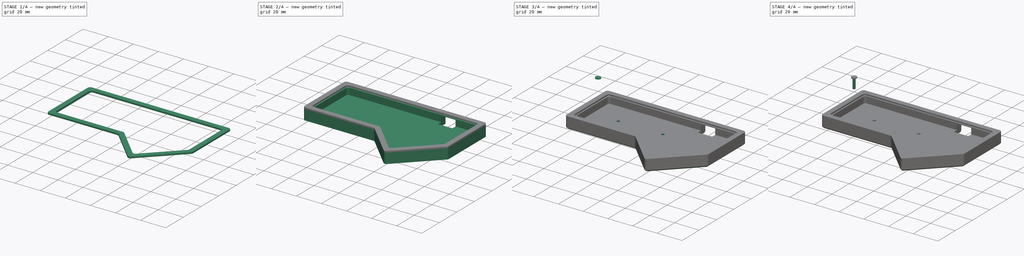
[diagram: build sequence overview — one tinted view per stage of 4, left to right]
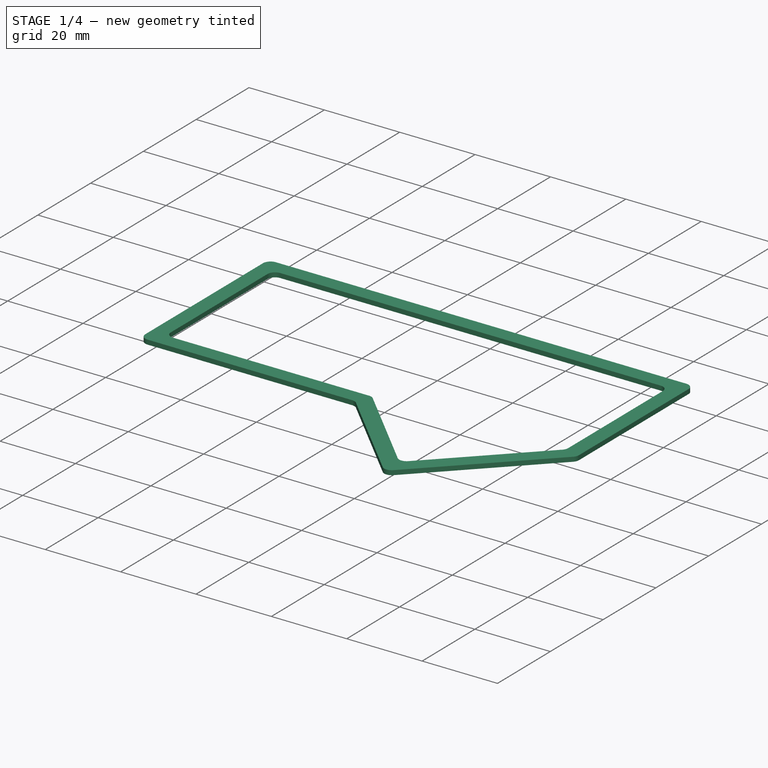
[diagram: stage 1 of 4 — iso view after this stage's code; geometry added in this stage tinted green]
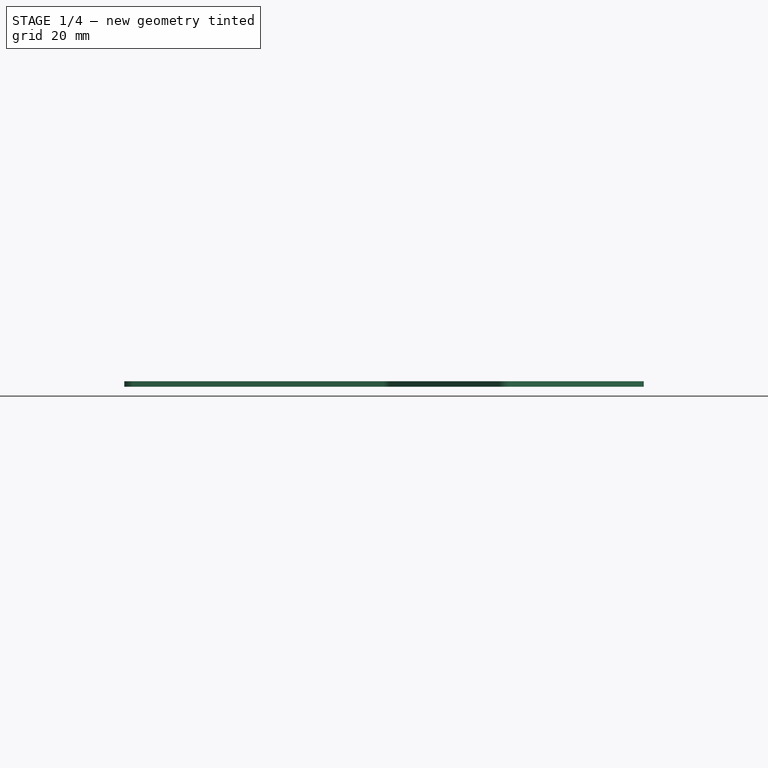
[diagram: stage 1 of 4 — front view after this stage's code; geometry added in this stage tinted green]
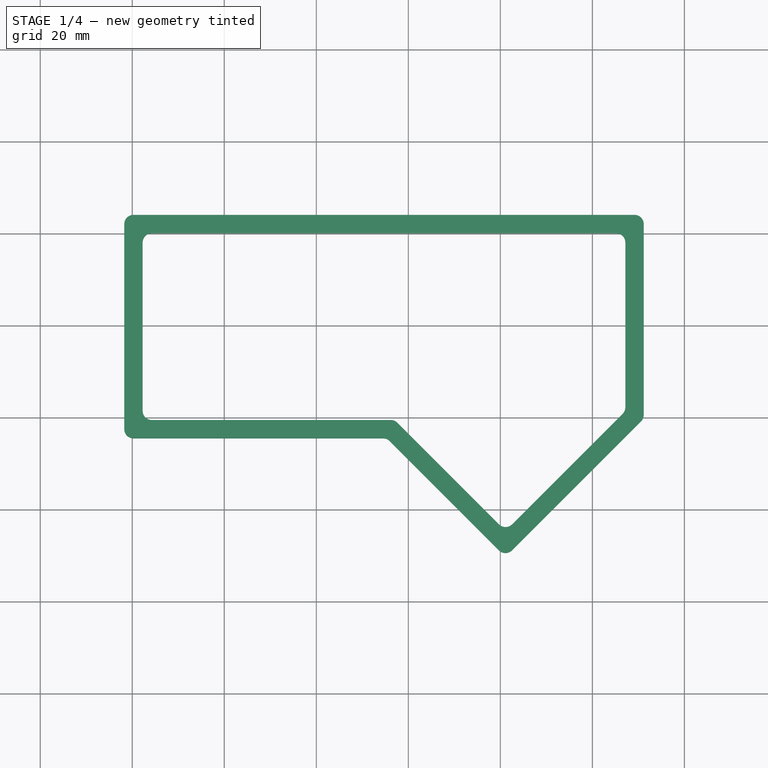
[diagram: stage 1 of 4 — top view after this stage's code; geometry added in this stage tinted green]
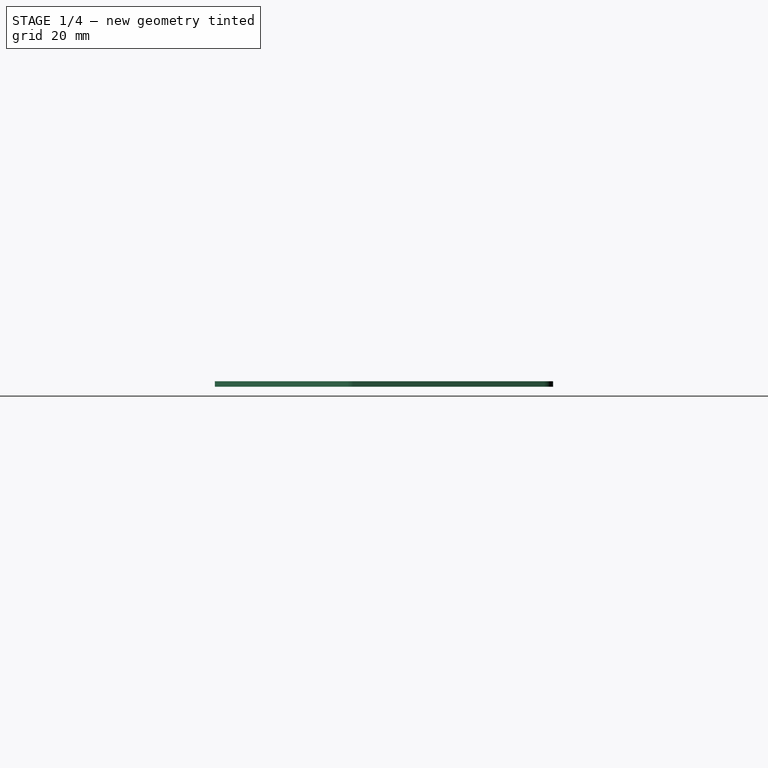
[diagram: stage 1 of 4 — right view after this stage's code; geometry added in this stage tinted green]
FCSTD DOCUMENT  (FreeCAD 0.21R33771 (Git))
Label: main
License: All rights reserved
LicenseURL: http://en.wikipedia.org/wiki/All_rights_reserved
objects: Part::Feature×26, Sketcher::SketchObject×12, PartDesign::Pad×9, PartDesign::Body×5, App::Part×4, PartDesign::ShapeBinder×3, PartDesign::Plane×2, PartDesign::Chamfer×2, App::MeasureDistance×2, PartDesign::Pocket×1, PartDesign::Hole×1
note: 74 computed .brp shape members not serialized (recipe doc carries the construction recipe); baked Part::Feature solids carry a one-line shape summary decoded from their .brp

FEATURE [PartDesign::Body] Body001  label="screw001"
  Group = -> [Sketch,Pad001,Sketch002,Pad002]
  Origin = -> Origin004
  Tip = -> Pad002
FEATURE [Part::Feature] Part__Feature010  label="USB_C_Receptacle_GCT_USB4125-xx-x_6P_TopMnt_Horizontal"
  shape: bbox 0.25 x 3.5 x 0.1 mm, 6 faces (baked)
FEATURE [Part::Feature] Part__Feature011  label="USB_C_Receptacle_GCT_USB4125-xx-x_6P_TopMnt_Horizontal001"
  shape: bbox 0.25 x 4 x 0.1 mm, 6 faces (baked)
FEATURE [Part::Feature] Part__Feature012  label="USB_C_Receptacle_GCT_USB4125-xx-x_6P_TopMnt_Horizontal002"
  shape: bbox 0.25 x 4 x 0.1 mm, 6 faces (baked)
FEATURE [Part::Feature] Part__Feature013  label="USB_C_Receptacle_GCT_USB4125-xx-x_6P_TopMnt_Horizontal003"
  shape: bbox 0.25 x 3.5 x 0.1 mm, 6 faces (baked)
FEATURE [Part::Feature] Part__Feature014  label="USB_C_Receptacle_GCT_USB4125-xx-x_6P_TopMnt_Horizontal004"
  shape: bbox 0.25 x 4 x 0.1 mm, 6 faces (baked)
FEATURE [Part::Feature] Part__Feature015  label="USB_C_Receptacle_GCT_USB4125-xx-x_6P_TopMnt_Horizontal005"
  shape: bbox 0.25 x 4 x 0.1 mm, 6 faces (baked)
FEATURE [Part::Feature] Part__Feature016  label="USB_C_Receptacle_GCT_USB4125-xx-x_6P_TopMnt_Horizontal006"
  shape: bbox 4.47 x 6.8 x 4.26 mm, 170 faces (baked)
FEATURE [Part::Feature] Part__Feature017  label="USB_C_Receptacle_GCT_USB4125-xx-x_6P_TopMnt_Horizontal007"
  shape: bbox 4.47 x 6.8 x 4.26 mm, 170 faces (baked)
FEATURE [Part::Feature] Part__Feature018  label="USB_C_Receptacle_GCT_USB4125-xx-x_6P_TopMnt_Horizontal008"
  shape: bbox 4.15 x 6.55 x 2.85 mm, 62 faces (baked)
FEATURE [Part::Feature] Part__Feature019  label="USB_C_Receptacle_GCT_USB4125-xx-x_6P_TopMnt_Horizontal009"
  shape: bbox 4.15 x 6.55 x 2.85 mm, 62 faces (baked)
FEATURE [Part::Feature] Part__Feature020  label="USB_C_Receptacle_GCT_USB4125-xx-x_6P_TopMnt_Horizontal010"
  shape: bbox 0.5 x 0.8 x 0.2 mm, 8 faces (baked)
FEATURE [Part::Feature] Part__Feature021  label="USB_C_Receptacle_GCT_USB4125-xx-x_6P_TopMnt_Horizontal011"
  shape: bbox 0.56 x 0.8 x 0.2 mm, 8 faces (baked)
FEATURE [Part::Feature] Part__Feature022  label="USB_C_Receptacle_GCT_USB4125-xx-x_6P_TopMnt_Horizontal012"
  shape: bbox 0.6 x 0.8 x 0.2 mm, 8 faces (baked)
FEATURE [Part::Feature] Part__Feature023  label="USB_C_Receptacle_GCT_USB4125-xx-x_6P_TopMnt_Horizontal013"
  shape: bbox 0.5 x 0.8 x 0.2 mm, 8 faces (baked)
FEATURE [Part::Feature] Part__Feature024  label="USB_C_Receptacle_GCT_USB4125-xx-x_6P_TopMnt_Horizontal014"
  shape: bbox 0.56 x 0.8 x 0.2 mm, 8 faces (baked)
FEATURE [Part::Feature] Part__Feature025  label="USB_C_Receptacle_GCT_USB4125-xx-x_6P_TopMnt_Horizontal015"
  shape: bbox 0.6 x 0.8 x 0.2 mm, 8 faces (baked)
FEATURE [App::Part] USB_C_Receptacle_GCT_USB4125_xx_x_6P_TopMnt_Horizontal  label="USB_C_Receptacle_GCT_USB4125-xx-x_6P_TopMnt_Horizontal016"
  Group = -> [Part__Feature010,Part__Feature011,Part__Feature012,Part__Feature013,Part__Feature014,Part__Feature015,Part__Feature016,Part__Feature017,Part__Feature018,Part__Feature019,Part__Feature020,Part__Feature021,Part__Feature022,Part__Feature023,Part__Feature024,Part__Feature025]
  Origin = -> Origin005
  Placement = pos=(103.966,-19.76,-2.2) rot=(-1,0,0;3.14159rad)
FEATURE [App::Part] Part001
  Group = -> [Part__Feature001,Part__Feature002,Part__Feature003,Part__Feature004,Part__Feature005,Part__Feature006,Part__Feature007,Part__Feature008,Part__Feature009,Part__Feature,USB_C_Receptacle_GCT_USB4125_xx_x_6P_TopMnt_Horizontal]
  Origin = -> Origin002
  Placement = pos=(0,0,1) rot=(0,0,1;0rad)
FEATURE [Sketcher::SketchObject] Sketch003
  FullyConstrained = false
  sketch-geometry (606):
    g0: Circle CenterX=116.562 CenterY=-35.68 CenterZ=0 NormalX=0 NormalY=0 NormalZ=-1 AngleXU=0 Radius=15
    g1: LineSegment StartX=52.2292 StartY=-53.0898 StartZ=0 EndX=52.372 EndY=-53.1374 EndZ=0
    g2: LineSegment StartX=52.372 StartY=-53.1374 StartZ=0 EndX=52.6101 EndY=-53.1374 EndZ=0
    g3: LineSegment StartX=52.6101 StartY=-53.1374 StartZ=0 EndX=52.7054 EndY=-53.0898 EndZ=0
    g4: LineSegment StartX=52.7054 StartY=-53.0898 StartZ=0 EndX=52.753 EndY=-53.0422 EndZ=0
    g5: LineSegment StartX=52.753 StartY=-53.0422 StartZ=0 EndX=52.8006 EndY=-52.9469 EndZ=0
    g6: LineSegment StartX=52.8006 StartY=-52.9469 StartZ=0 EndX=52.8006 EndY=-52.8517 EndZ=0
    g7: LineSegment StartX=52.8006 StartY=-52.8517 StartZ=0 EndX=52.753 EndY=-52.7565 EndZ=0
    g8: LineSegment StartX=52.753 StartY=-52.7565 StartZ=0 EndX=52.7054 EndY=-52.7088 EndZ=0
    g9: LineSegment StartX=52.7054 StartY=-52.7088 StartZ=0 EndX=52.6101 EndY=-52.6612 EndZ=0
    g10: LineSegment StartX=52.6101 StartY=-52.6612 StartZ=0 EndX=52.4196 EndY=-52.6136 EndZ=0
    g11: LineSegment StartX=52.4196 StartY=-52.6136 StartZ=0 EndX=52.3244 EndY=-52.566 EndZ=0
    g12: LineSegment StartX=52.3244 StartY=-52.566 StartZ=0 EndX=52.2768 EndY=-52.5184 EndZ=0
    g13: LineSegment StartX=52.2768 StartY=-52.5184 StartZ=0 EndX=52.2292 EndY=-52.4231 EndZ=0
    g14: LineSegment StartX=52.2292 StartY=-52.4231 StartZ=0 EndX=52.2292 EndY=-52.3279 EndZ=0
    g15: LineSegment StartX=52.2292 StartY=-52.3279 StartZ=0 EndX=52.2768 EndY=-52.2327 EndZ=0
    g16: LineSegment StartX=52.2768 StartY=-52.2327 StartZ=0 EndX=52.3244 EndY=-52.185 EndZ=0
    g17: LineSegment StartX=52.3244 StartY=-52.185 StartZ=0 EndX=52.4196 EndY=-52.1374 EndZ=0
    g18: LineSegment StartX=52.4196 StartY=-52.1374 StartZ=0 EndX=52.6577 EndY=-52.1374 EndZ=0
    g19: LineSegment StartX=52.6577 StartY=-52.1374 StartZ=0 EndX=52.8006 EndY=-52.185 EndZ=0
    g20: LineSegment StartX=53.1339 StartY=-52.1374 StartZ=0 EndX=53.372 EndY=-53.1374 EndZ=0
    g21: LineSegment StartX=53.372 StartY=-53.1374 StartZ=0 EndX=53.5625 EndY=-52.4231 EndZ=0
    g22: LineSegment StartX=53.5625 StartY=-52.4231 StartZ=0 EndX=53.753 EndY=-53.1374 EndZ=0
    g23: LineSegment StartX=53.753 StartY=-53.1374 StartZ=0 EndX=53.9911 EndY=-52.1374 EndZ=0
    g24: LineSegment StartX=54.8006 StartY=-52.1374 StartZ=0 EndX=54.6101 EndY=-52.1374 EndZ=0
    g25: LineSegment StartX=54.6101 StartY=-52.1374 StartZ=0 EndX=54.5149 EndY=-52.185 EndZ=0
    g26: LineSegment StartX=54.5149 StartY=-52.185 StartZ=0 EndX=54.4673 EndY=-52.2327 EndZ=0
    g27: LineSegment StartX=54.4673 StartY=-52.2327 StartZ=0 EndX=54.372 EndY=-52.3755 EndZ=0
    g28: LineSegment StartX=54.372 StartY=-52.3755 StartZ=0 EndX=54.3244 EndY=-52.566 EndZ=0
    g29: LineSegment StartX=54.3244 StartY=-52.566 StartZ=0 EndX=54.3244 EndY=-52.9469 EndZ=0
    g30: LineSegment StartX=54.3244 StartY=-52.9469 StartZ=0 EndX=54.372 EndY=-53.0422 EndZ=0
    g31: LineSegment StartX=54.372 StartY=-53.0422 StartZ=0 EndX=54.4196 EndY=-53.0898 EndZ=0
    g32: LineSegment StartX=54.4196 StartY=-53.0898 StartZ=0 EndX=54.5149 EndY=-53.1374 EndZ=0
    g33: LineSegment StartX=54.5149 StartY=-53.1374 StartZ=0 EndX=54.7054 EndY=-53.1374 EndZ=0
    g34: LineSegment StartX=54.7054 StartY=-53.1374 StartZ=0 EndX=54.8006 EndY=-53.0898 EndZ=0
    g35: LineSegment StartX=54.8006 StartY=-53.0898 StartZ=0 EndX=54.8482 EndY=-53.0422 EndZ=0
    g36: LineSegment StartX=54.8482 StartY=-53.0422 StartZ=0 EndX=54.8958 EndY=-52.9469 EndZ=0
    g37: LineSegment StartX=54.8958 StartY=-52.9469 StartZ=0 EndX=54.8958 EndY=-52.7088 EndZ=0
    g38: LineSegment StartX=54.8958 StartY=-52.7088 StartZ=0 EndX=54.8482 EndY=-52.6136 EndZ=0
    g39: LineSegment StartX=54.8482 StartY=-52.6136 StartZ=0 EndX=54.8006 EndY=-52.566 EndZ=0
    g40: LineSegment StartX=54.8006 StartY=-52.566 StartZ=0 EndX=54.7054 EndY=-52.5184 EndZ=0
    g41: LineSegment StartX=54.7054 StartY=-52.5184 StartZ=0 EndX=54.5149 EndY=-52.5184 EndZ=0
    g42: LineSegment StartX=54.5149 StartY=-52.5184 StartZ=0 EndX=54.4196 EndY=-52.566 EndZ=0
    g43: LineSegment StartX=54.4196 StartY=-52.566 StartZ=0 EndX=54.372 EndY=-52.6136 EndZ=0
    g44: LineSegment StartX=54.372 StartY=-52.6136 StartZ=0 EndX=54.3244 EndY=-52.7088 EndZ=0
    g45: LineSegment StartX=70.2292 StartY=-35.0898 StartZ=0 EndX=70.372 EndY=-35.1374 EndZ=0
    g46: LineSegment StartX=70.372 StartY=-35.1374 StartZ=0 EndX=70.6101 EndY=-35.1374 EndZ=0
    g47: LineSegment StartX=70.6101 StartY=-35.1374 StartZ=0 EndX=70.7054 EndY=-35.0898 EndZ=0
    g48: LineSegment StartX=70.7054 StartY=-35.0898 StartZ=0 EndX=70.753 EndY=-35.0422 EndZ=0
    g49: LineSegment StartX=70.753 StartY=-35.0422 StartZ=0 EndX=70.8006 EndY=-34.9469 EndZ=0
    g50: LineSegment StartX=70.8006 StartY=-34.9469 StartZ=0 EndX=70.8006 EndY=-34.8517 EndZ=0
    g51: LineSegment StartX=70.8006 StartY=-34.8517 StartZ=0 EndX=70.753 EndY=-34.7565 EndZ=0
    g52: LineSegment StartX=70.753 StartY=-34.7565 StartZ=0 EndX=70.7054 EndY=-34.7088 EndZ=0
    g53: LineSegment StartX=70.7054 StartY=-34.7088 StartZ=0 EndX=70.6101 EndY=-34.6612 EndZ=0
    g54: LineSegment StartX=70.6101 StartY=-34.6612 StartZ=0 EndX=70.4196 EndY=-34.6136 EndZ=0
    g55: LineSegment StartX=70.4196 StartY=-34.6136 StartZ=0 EndX=70.3244 EndY=-34.566 EndZ=0
    g56: LineSegment StartX=70.3244 StartY=-34.566 StartZ=0 EndX=70.2768 EndY=-34.5184 EndZ=0
    g57: LineSegment StartX=70.2768 StartY=-34.5184 StartZ=0 EndX=70.2292 EndY=-34.4231 EndZ=0
    g58: LineSegment StartX=70.2292 StartY=-34.4231 StartZ=0 EndX=70.2292 EndY=-34.3279 EndZ=0
    g59: LineSegment StartX=70.2292 StartY=-34.3279 StartZ=0 EndX=70.2768 EndY=-34.2327 EndZ=0
    g60: LineSegment StartX=70.2768 StartY=-34.2327 StartZ=0 EndX=70.3244 EndY=-34.185 EndZ=0
    g61: LineSegment StartX=70.3244 StartY=-34.185 StartZ=0 EndX=70.4196 EndY=-34.1374 EndZ=0
    g62: LineSegment StartX=70.4196 StartY=-34.1374 StartZ=0 EndX=70.6577 EndY=-34.1374 EndZ=0
    g63: LineSegment StartX=70.6577 StartY=-34.1374 StartZ=0 EndX=70.8006 EndY=-34.185 EndZ=0
    g64: LineSegment StartX=71.1339 StartY=-34.1374 StartZ=0 EndX=71.372 EndY=-35.1374 EndZ=0
    g65: LineSegment StartX=71.372 StartY=-35.1374 StartZ=0 EndX=71.5625 EndY=-34.4231 EndZ=0
    g66: LineSegment StartX=71.5625 StartY=-34.4231 StartZ=0 EndX=71.753 EndY=-35.1374 EndZ=0
    g67: LineSegment StartX=71.753 StartY=-35.1374 StartZ=0 EndX=71.9911 EndY=-34.1374 EndZ=0
    g68: LineSegment StartX=72.2768 StartY=-34.1374 StartZ=0 EndX=72.9435 EndY=-34.1374 EndZ=0
    g69: LineSegment StartX=72.9435 StartY=-34.1374 StartZ=0 EndX=72.5149 EndY=-35.1374 EndZ=0
    g70: LineSegment StartX=70.2292 StartY=-53.0898 StartZ=0 EndX=70.372 EndY=-53.1374 EndZ=0
    g71: LineSegment StartX=70.372 StartY=-53.1374 StartZ=0 EndX=70.6101 EndY=-53.1374 EndZ=0
    g72: LineSegment StartX=70.6101 StartY=-53.1374 StartZ=0 EndX=70.7054 EndY=-53.0898 EndZ=0
    g73: LineSegment StartX=70.7054 StartY=-53.0898 StartZ=0 EndX=70.753 EndY=-53.0422 EndZ=0
    g74: LineSegment StartX=70.753 StartY=-53.0422 StartZ=0 EndX=70.8006 EndY=-52.9469 EndZ=0
    g75: LineSegment StartX=70.8006 StartY=-52.9469 StartZ=0 EndX=70.8006 EndY=-52.8517 EndZ=0
    g76: LineSegment StartX=70.8006 StartY=-52.8517 StartZ=0 EndX=70.753 EndY=-52.7565 EndZ=0
    g77: LineSegment StartX=70.753 StartY=-52.7565 StartZ=0 EndX=70.7054 EndY=-52.7088 EndZ=0
    g78: LineSegment StartX=70.7054 StartY=-52.7088 StartZ=0 EndX=70.6101 EndY=-52.6612 EndZ=0
    g79: LineSegment StartX=70.6101 StartY=-52.6612 StartZ=0 EndX=70.4196 EndY=-52.6136 EndZ=0
    g80: LineSegment StartX=70.4196 StartY=-52.6136 StartZ=0 EndX=70.3244 EndY=-52.566 EndZ=0
    g81: LineSegment StartX=70.3244 StartY=-52.566 StartZ=0 EndX=70.2768 EndY=-52.5184 EndZ=0
    g82: LineSegment StartX=70.2768 StartY=-52.5184 StartZ=0 EndX=70.2292 EndY=-52.4231 EndZ=0
    g83: LineSegment StartX=70.2292 StartY=-52.4231 StartZ=0 EndX=70.2292 EndY=-52.3279 EndZ=0
    g84: LineSegment StartX=70.2292 StartY=-52.3279 StartZ=0 EndX=70.2768 EndY=-52.2327 EndZ=0
    g85: LineSegment StartX=70.2768 StartY=-52.2327 StartZ=0 EndX=70.3244 EndY=-52.185 EndZ=0
    g86: LineSegment StartX=70.3244 StartY=-52.185 StartZ=0 EndX=70.4196 EndY=-52.1374 EndZ=0
    g87: LineSegment StartX=70.4196 StartY=-52.1374 StartZ=0 EndX=70.6577 EndY=-52.1374 EndZ=0
    g88: LineSegment StartX=70.6577 StartY=-52.1374 StartZ=0 EndX=70.8006 EndY=-52.185 EndZ=0
    g89: LineSegment StartX=71.1339 StartY=-52.1374 StartZ=0 EndX=71.372 EndY=-53.1374 EndZ=0
    g90: LineSegment StartX=71.372 StartY=-53.1374 StartZ=0 EndX=71.5625 EndY=-52.4231 EndZ=0
    g91: LineSegment StartX=71.5625 StartY=-52.4231 StartZ=0 EndX=71.753 EndY=-53.1374 EndZ=0
    g92: LineSegment StartX=71.753 StartY=-53.1374 StartZ=0 EndX=71.9911 EndY=-52.1374 EndZ=0
    g93: LineSegment StartX=72.5149 StartY=-52.566 StartZ=0 EndX=72.4196 EndY=-52.5184 EndZ=0
    g94: LineSegment StartX=72.4196 StartY=-52.5184 StartZ=0 EndX=72.372 EndY=-52.4708 EndZ=0
    g95: LineSegment StartX=72.372 StartY=-52.4708 StartZ=0 EndX=72.3244 EndY=-52.3755 EndZ=0
    g96: LineSegment StartX=72.3244 StartY=-52.3755 StartZ=0 EndX=72.3244 EndY=-52.3279 EndZ=0
    g97: LineSegment StartX=72.3244 StartY=-52.3279 StartZ=0 EndX=72.372 EndY=-52.2327 EndZ=0
    g98: LineSegment StartX=72.372 StartY=-52.2327 StartZ=0 EndX=72.4196 EndY=-52.185 EndZ=0
    g99: LineSegment StartX=72.4196 StartY=-52.185 StartZ=0 EndX=72.5149 EndY=-52.1374 EndZ=0
    g100: LineSegment StartX=72.5149 StartY=-52.1374 StartZ=0 EndX=72.7054 EndY=-52.1374 EndZ=0
    g101: LineSegment StartX=72.7054 StartY=-52.1374 StartZ=0 EndX=72.8006 EndY=-52.185 EndZ=0
    g102: LineSegment StartX=72.8006 StartY=-52.185 StartZ=0 EndX=72.8482 EndY=-52.2327 EndZ=0
    g103: LineSegment StartX=72.8482 StartY=-52.2327 StartZ=0 EndX=72.8958 EndY=-52.3279 EndZ=0
    g104: LineSegment StartX=72.8958 StartY=-52.3279 StartZ=0 EndX=72.8958 EndY=-52.3755 EndZ=0
    g105: LineSegment StartX=72.8958 StartY=-52.3755 StartZ=0 EndX=72.8482 EndY=-52.4708 EndZ=0
    g106: LineSegment StartX=72.8482 StartY=-52.4708 StartZ=0 EndX=72.8006 EndY=-52.5184 EndZ=0
    g107: LineSegment StartX=72.8006 StartY=-52.5184 StartZ=0 EndX=72.7054 EndY=-52.566 EndZ=0
    g108: LineSegment StartX=72.7054 StartY=-52.566 StartZ=0 EndX=72.5149 EndY=-52.566 EndZ=0
    g109: LineSegment StartX=72.5149 StartY=-52.566 StartZ=0 EndX=72.4196 EndY=-52.6136 EndZ=0
    g110: LineSegment StartX=72.4196 StartY=-52.6136 StartZ=0 EndX=72.372 EndY=-52.6612 EndZ=0
    g111: LineSegment StartX=72.372 StartY=-52.6612 StartZ=0 EndX=72.3244 EndY=-52.7565 EndZ=0
    g112: LineSegment StartX=72.3244 StartY=-52.7565 StartZ=0 EndX=72.3244 EndY=-52.9469 EndZ=0
    g113: LineSegment StartX=72.3244 StartY=-52.9469 StartZ=0 EndX=72.372 EndY=-53.0422 EndZ=0
    g114: LineSegment StartX=72.372 StartY=-53.0422 StartZ=0 EndX=72.4196 EndY=-53.0898 EndZ=0
    g115: LineSegment StartX=72.4196 StartY=-53.0898 StartZ=0 EndX=72.5149 EndY=-53.1374 EndZ=0
    g116: LineSegment StartX=72.5149 StartY=-53.1374 StartZ=0 EndX=72.7054 EndY=-53.1374 EndZ=0
    g117: LineSegment StartX=72.7054 StartY=-53.1374 StartZ=0 EndX=72.8006 EndY=-53.0898 EndZ=0
    g118: LineSegment StartX=72.8006 StartY=-53.0898 StartZ=0 EndX=72.8482 EndY=-53.0422 EndZ=0
    g119: LineSegment StartX=72.8482 StartY=-53.0422 StartZ=0 EndX=72.8958 EndY=-52.9469 EndZ=0
    g120: LineSegment StartX=72.8958 StartY=-52.9469 StartZ=0 EndX=72.8958 EndY=-52.7565 EndZ=0
    g121: LineSegment StartX=72.8958 StartY=-52.7565 StartZ=0 EndX=72.8482 EndY=-52.6612 EndZ=0
    g122: LineSegment StartX=72.8482 StartY=-52.6612 StartZ=0 EndX=72.8006 EndY=-52.6136 EndZ=0
    g123: LineSegment StartX=72.8006 StartY=-52.6136 StartZ=0 EndX=72.7054 EndY=-52.566 EndZ=0
    g124: LineSegment StartX=124.17 StartY=-32.7395 StartZ=0 EndX=124.217 EndY=-32.5967 EndZ=0
    g125: LineSegment StartX=124.217 StartY=-32.5967 StartZ=0 EndX=124.217 EndY=-32.3586 EndZ=0
    g126: LineSegment StartX=124.217 StartY=-32.3586 StartZ=0 EndX=124.17 EndY=-32.2633 EndZ=0
    g127: LineSegment StartX=124.17 StartY=-32.2633 StartZ=0 EndX=124.122 EndY=-32.2157 EndZ=0
    g128: LineSegment StartX=124.122 StartY=-32.2157 StartZ=0 EndX=124.027 EndY=-32.1681 EndZ=0
    g129: LineSegment StartX=124.027 StartY=-32.1681 StartZ=0 EndX=123.932 EndY=-32.1681 EndZ=0
    g130: LineSegment StartX=123.932 StartY=-32.1681 StartZ=0 EndX=123.836 EndY=-32.2157 EndZ=0
    g131: LineSegment StartX=123.836 StartY=-32.2157 StartZ=0 EndX=123.789 EndY=-32.2633 EndZ=0
    g132: LineSegment StartX=123.789 StartY=-32.2633 StartZ=0 EndX=123.741 EndY=-32.3586 EndZ=0
    g133: LineSegment StartX=123.741 StartY=-32.3586 StartZ=0 EndX=123.694 EndY=-32.549 EndZ=0
    g134: LineSegment StartX=123.694 StartY=-32.549 StartZ=0 EndX=123.646 EndY=-32.6443 EndZ=0
    g135: LineSegment StartX=123.646 StartY=-32.6443 StartZ=0 EndX=123.598 EndY=-32.6919 EndZ=0
    g136: LineSegment StartX=123.598 StartY=-32.6919 StartZ=0 EndX=123.503 EndY=-32.7395 EndZ=0
    g137: LineSegment StartX=123.503 StartY=-32.7395 StartZ=0 EndX=123.408 EndY=-32.7395 EndZ=0
    g138: LineSegment StartX=123.408 StartY=-32.7395 StartZ=0 EndX=123.313 EndY=-32.6919 EndZ=0
    g139: LineSegment StartX=123.313 StartY=-32.6919 StartZ=0 EndX=123.265 EndY=-32.6443 EndZ=0
    g140: LineSegment StartX=123.265 StartY=-32.6443 StartZ=0 EndX=123.217 EndY=-32.549 EndZ=0
    g141: LineSegment StartX=123.217 StartY=-32.549 StartZ=0 EndX=123.217 EndY=-32.311 EndZ=0
    g142: LineSegment StartX=123.217 StartY=-32.311 StartZ=0 EndX=123.265 EndY=-32.1681 EndZ=0
    g143: LineSegment StartX=123.217 StartY=-31.8348 StartZ=0 EndX=124.217 EndY=-31.5967 EndZ=0
    g144: LineSegment StartX=124.217 StartY=-31.5967 StartZ=0 EndX=123.503 EndY=-31.4062 EndZ=0
    g145: LineSegment StartX=123.503 StartY=-31.4062 StartZ=0 EndX=124.217 EndY=-31.2157 EndZ=0
    g146: LineSegment StartX=124.217 StartY=-31.2157 StartZ=0 EndX=123.217 EndY=-30.9776 EndZ=0
    g147: LineSegment StartX=124.217 StartY=-30.0729 StartZ=0 EndX=124.217 EndY=-30.6443 EndZ=0
    g148: LineSegment StartX=124.217 StartY=-30.3586 StartZ=0 EndX=123.217 EndY=-30.3586 EndZ=0
    g149: LineSegment StartX=123.217 StartY=-30.3586 StartZ=0 EndX=123.36 EndY=-30.4538 EndZ=0
    g150: LineSegment StartX=123.36 StartY=-30.4538 StartZ=0 EndX=123.455 EndY=-30.549 EndZ=0
    g151: LineSegment StartX=123.455 StartY=-30.549 StartZ=0 EndX=123.503 EndY=-30.6443 EndZ=0
    g152: LineSegment StartX=123.313 StartY=-29.6919 StartZ=0 EndX=123.265 EndY=-29.6443 EndZ=0
    g153: LineSegment StartX=123.265 StartY=-29.6443 StartZ=0 EndX=123.217 EndY=-29.549 EndZ=0
    g154: LineSegment StartX=123.217 StartY=-29.549 StartZ=0 EndX=123.217 EndY=-29.311 EndZ=0
    g155: LineSegment StartX=123.217 StartY=-29.311 StartZ=0 EndX=123.265 EndY=-29.2157 EndZ=0
    g156: LineSegment StartX=123.265 StartY=-29.2157 StartZ=0 EndX=123.313 EndY=-29.1681 EndZ=0
    g157: LineSegment StartX=123.313 StartY=-29.1681 StartZ=0 EndX=123.408 EndY=-29.1205 EndZ=0
    g158: LineSegment StartX=123.408 StartY=-29.1205 StartZ=0 EndX=123.503 EndY=-29.1205 EndZ=0
    g159: LineSegment StartX=123.503 StartY=-29.1205 StartZ=0 EndX=123.646 EndY=-29.1681 EndZ=0
    g160: LineSegment StartX=123.646 StartY=-29.1681 StartZ=0 EndX=124.217 EndY=-29.7395 EndZ=0
    g161: LineSegment StartX=124.217 StartY=-29.7395 StartZ=0 EndX=124.217 EndY=-29.1205 EndZ=0
    g162: LineSegment StartX=87.753 StartY=-53.0898 StartZ=0 EndX=87.8958 EndY=-53.1374 EndZ=0
    g163: LineSegment StartX=87.8958 StartY=-53.1374 StartZ=0 EndX=88.1339 EndY=-53.1374 EndZ=0
    g164: LineSegment StartX=88.1339 StartY=-53.1374 StartZ=0 EndX=88.2292 EndY=-53.0898 EndZ=0
    g165: LineSegment StartX=88.2292 StartY=-53.0898 StartZ=0 EndX=88.2768 EndY=-53.0422 EndZ=0
    g166: LineSegment StartX=88.2768 StartY=-53.0422 StartZ=0 EndX=88.3244 EndY=-52.9469 EndZ=0
    g167: LineSegment StartX=88.3244 StartY=-52.9469 StartZ=0 EndX=88.3244 EndY=-52.8517 EndZ=0
    g168: LineSegment StartX=88.3244 StartY=-52.8517 StartZ=0 EndX=88.2768 EndY=-52.7565 EndZ=0
    g169: LineSegment StartX=88.2768 StartY=-52.7565 StartZ=0 EndX=88.2292 EndY=-52.7088 EndZ=0
    g170: LineSegment StartX=88.2292 StartY=-52.7088 StartZ=0 EndX=88.1339 EndY=-52.6612 EndZ=0
    g171: LineSegment StartX=88.1339 StartY=-52.6612 StartZ=0 EndX=87.9435 EndY=-52.6136 EndZ=0
    g172: LineSegment StartX=87.9435 StartY=-52.6136 StartZ=0 EndX=87.8482 EndY=-52.566 EndZ=0
    g173: LineSegment StartX=87.8482 StartY=-52.566 StartZ=0 EndX=87.8006 EndY=-52.5184 EndZ=0
    g174: LineSegment StartX=87.8006 StartY=-52.5184 StartZ=0 EndX=87.753 EndY=-52.4231 EndZ=0
    g175: LineSegment StartX=87.753 StartY=-52.4231 StartZ=0 EndX=87.753 EndY=-52.3279 EndZ=0
    g176: LineSegment StartX=87.753 StartY=-52.3279 StartZ=0 EndX=87.8006 EndY=-52.2327 EndZ=0
    g177: LineSegment StartX=87.8006 StartY=-52.2327 StartZ=0 EndX=87.8482 EndY=-52.185 EndZ=0
    g178: LineSegment StartX=87.8482 StartY=-52.185 StartZ=0 EndX=87.9435 EndY=-52.1374 EndZ=0
    g179: LineSegment StartX=87.9435 StartY=-52.1374 StartZ=0 EndX=88.1815 EndY=-52.1374 EndZ=0
    g180: LineSegment StartX=88.1815 StartY=-52.1374 StartZ=0 EndX=88.3244 EndY=-52.185 EndZ=0
    g181: LineSegment StartX=88.6577 StartY=-52.1374 StartZ=0 EndX=88.8958 EndY=-53.1374 EndZ=0
    g182: LineSegment StartX=88.8958 StartY=-53.1374 StartZ=0 EndX=89.0863 EndY=-52.4231 EndZ=0
    g183: LineSegment StartX=89.0863 StartY=-52.4231 StartZ=0 EndX=89.2768 EndY=-53.1374 EndZ=0
    g184: LineSegment StartX=89.2768 StartY=-53.1374 StartZ=0 EndX=89.5149 EndY=-52.1374 EndZ=0
    g185: LineSegment StartX=90.4196 StartY=-53.1374 StartZ=0 EndX=89.8482 EndY=-53.1374 EndZ=0
    g186: LineSegment StartX=90.1339 StartY=-53.1374 StartZ=0 EndX=90.1339 EndY=-52.1374 EndZ=0
    g187: LineSegment StartX=90.1339 StartY=-52.1374 StartZ=0 EndX=90.0387 EndY=-52.2803 EndZ=0
    g188: LineSegment StartX=90.0387 StartY=-52.2803 StartZ=0 EndX=89.9435 EndY=-52.3755 EndZ=0
    g189: LineSegment StartX=89.9435 StartY=-52.3755 StartZ=0 EndX=89.8482 EndY=-52.4231 EndZ=0
    g190: LineSegment StartX=91.0387 StartY=-52.1374 StartZ=0 EndX=91.1339 EndY=-52.1374 EndZ=0
    g191: LineSegment StartX=91.1339 StartY=-52.1374 StartZ=0 EndX=91.2292 EndY=-52.185 EndZ=0
    g192: LineSegment StartX=91.2292 StartY=-52.185 StartZ=0 EndX=91.2768 EndY=-52.2327 EndZ=0
    g193: LineSegment StartX=91.2768 StartY=-52.2327 StartZ=0 EndX=91.3244 EndY=-52.3279 EndZ=0
    g194: LineSegment StartX=91.3244 StartY=-52.3279 StartZ=0 EndX=91.372 EndY=-52.5184 EndZ=0
    g195: LineSegment StartX=91.372 StartY=-52.5184 StartZ=0 EndX=91.372 EndY=-52.7565 EndZ=0
    g196: LineSegment StartX=91.372 StartY=-52.7565 StartZ=0 EndX=91.3244 EndY=-52.9469 EndZ=0
    g197: LineSegment StartX=91.3244 StartY=-52.9469 StartZ=0 EndX=91.2768 EndY=-53.0422 EndZ=0
    g198: LineSegment StartX=91.2768 StartY=-53.0422 StartZ=0 EndX=91.2292 EndY=-53.0898 EndZ=0
    g199: LineSegment StartX=91.2292 StartY=-53.0898 StartZ=0 EndX=91.1339 EndY=-53.1374 EndZ=0
    g200: LineSegment StartX=91.1339 StartY=-53.1374 StartZ=0 EndX=91.0387 EndY=-53.1374 EndZ=0
    g201: LineSegment StartX=91.0387 StartY=-53.1374 StartZ=0 EndX=90.9435 EndY=-53.0898 EndZ=0
    g202: LineSegment StartX=90.9435 StartY=-53.0898 StartZ=0 EndX=90.8958 EndY=-53.0422 EndZ=0
    g203: LineSegment StartX=90.8958 StartY=-53.0422 StartZ=0 EndX=90.8482 EndY=-52.9469 EndZ=0
    g204: LineSegment StartX=90.8482 StartY=-52.9469 StartZ=0 EndX=90.8006 EndY=-52.7565 EndZ=0
    g205: LineSegment StartX=90.8006 StartY=-52.7565 StartZ=0 EndX=90.8006 EndY=-52.5184 EndZ=0
    g206: LineSegment StartX=90.8006 StartY=-52.5184 StartZ=0 EndX=90.8482 EndY=-52.3279 EndZ=0
    g207: LineSegment StartX=90.8482 StartY=-52.3279 StartZ=0 EndX=90.8958 EndY=-52.2327 EndZ=0
    g208: LineSegment StartX=90.8958 StartY=-52.2327 StartZ=0 EndX=90.9435 EndY=-52.185 EndZ=0
    g209: LineSegment StartX=90.9435 StartY=-52.185 StartZ=0 EndX=91.0387 EndY=-52.1374 EndZ=0
    g210: LineSegment StartX=105.798 StartY=-69.4742 StartZ=0 EndX=105.932 EndY=-69.4068 EndZ=0
    g211: LineSegment StartX=105.932 StartY=-69.4068 StartZ=0 EndX=106.101 EndY=-69.2385 EndZ=0
    g212: LineSegment StartX=106.101 StartY=-69.2385 StartZ=0 EndX=106.134 EndY=-69.1375 EndZ=0
    g213: LineSegment StartX=106.134 StartY=-69.1375 StartZ=0 EndX=106.134 EndY=-69.0701 EndZ=0
    g214: LineSegment StartX=106.134 StartY=-69.0701 StartZ=0 EndX=106.101 EndY=-68.9691 EndZ=0
    g215: LineSegment StartX=106.101 StartY=-68.9691 StartZ=0 EndX=106.033 EndY=-68.9018 EndZ=0
    g216: LineSegment StartX=106.033 StartY=-68.9018 StartZ=0 EndX=105.932 EndY=-68.8681 EndZ=0
    g217: LineSegment StartX=105.932 StartY=-68.8681 StartZ=0 EndX=105.865 EndY=-68.8681 EndZ=0
    g218: LineSegment StartX=105.865 StartY=-68.8681 StartZ=0 EndX=105.764 EndY=-68.9018 EndZ=0
    g219: LineSegment StartX=105.764 StartY=-68.9018 StartZ=0 EndX=105.596 EndY=-69.0028 EndZ=0
    g220: LineSegment StartX=105.596 StartY=-69.0028 StartZ=0 EndX=105.495 EndY=-69.0364 EndZ=0
    g221: LineSegment StartX=105.495 StartY=-69.0364 StartZ=0 EndX=105.427 EndY=-69.0364 EndZ=0
    g222: LineSegment StartX=105.427 StartY=-69.0364 StartZ=0 EndX=105.326 EndY=-69.0028 EndZ=0
    g223: LineSegment StartX=105.326 StartY=-69.0028 StartZ=0 EndX=105.259 EndY=-68.9354 EndZ=0
    g224: LineSegment StartX=105.259 StartY=-68.9354 StartZ=0 EndX=105.225 EndY=-68.8344 EndZ=0
    g225: LineSegment StartX=105.225 StartY=-68.8344 StartZ=0 EndX=105.225 EndY=-68.7671 EndZ=0
    g226: LineSegment StartX=105.225 StartY=-68.7671 StartZ=0 EndX=105.259 EndY=-68.666 EndZ=0
    g227: LineSegment StartX=105.259 StartY=-68.666 StartZ=0 EndX=105.427 EndY=-68.4977 EndZ=0
    g228: LineSegment StartX=105.427 StartY=-68.4977 StartZ=0 EndX=105.562 EndY=-68.4303 EndZ=0
    g229: LineSegment StartX=105.764 StartY=-68.161 StartZ=0 EndX=106.639 EndY=-68.6997 EndZ=0
    g230: LineSegment StartX=106.639 StartY=-68.6997 StartZ=0 EndX=106.269 EndY=-68.06 EndZ=0
    g231: LineSegment StartX=106.269 StartY=-68.06 StartZ=0 EndX=106.909 EndY=-68.4303 EndZ=0
    g232: LineSegment StartX=106.909 StartY=-68.4303 StartZ=0 EndX=106.37 EndY=-67.5549 EndZ=0
    g233: LineSegment StartX=107.717 StartY=-67.6222 StartZ=0 EndX=107.313 EndY=-68.0263 EndZ=0
    g234: LineSegment StartX=107.515 StartY=-67.8243 StartZ=0 EndX=106.808 EndY=-67.1171 EndZ=0
    g235: LineSegment StartX=106.808 StartY=-67.1171 StartZ=0 EndX=106.841 EndY=-67.2855 EndZ=0
    g236: LineSegment StartX=106.841 StartY=-67.2855 StartZ=0 EndX=106.841 EndY=-67.4202 EndZ=0
    g237: LineSegment StartX=106.841 StartY=-67.4202 StartZ=0 EndX=106.808 EndY=-67.5212 EndZ=0
    g238: LineSegment StartX=108.39 StartY=-66.9488 StartZ=0 EndX=107.986 EndY=-67.3529 EndZ=0
    g239: LineSegment StartX=108.188 StartY=-67.1508 StartZ=0 EndX=107.481 EndY=-66.4437 EndZ=0
    g240: LineSegment StartX=107.481 StartY=-66.4437 StartZ=0 EndX=107.515 EndY=-66.6121 EndZ=0
    g241: LineSegment StartX=107.515 StartY=-66.6121 StartZ=0 EndX=107.515 EndY=-66.7468 EndZ=0
    g242: LineSegment StartX=107.515 StartY=-66.7468 StartZ=0 EndX=107.481 EndY=-66.8478 EndZ=0
    g243: LineSegment StartX=34.2292 StartY=-53.0898 StartZ=0 EndX=34.372 EndY=-53.1374 EndZ=0
    g244: LineSegment StartX=34.372 StartY=-53.1374 StartZ=0 EndX=34.6101 EndY=-53.1374 EndZ=0
    g245: LineSegment StartX=34.6101 StartY=-53.1374 StartZ=0 EndX=34.7054 EndY=-53.0898 EndZ=0
    g246: LineSegment StartX=34.7054 StartY=-53.0898 StartZ=0 EndX=34.753 EndY=-53.0422 EndZ=0
    g247: LineSegment StartX=34.753 StartY=-53.0422 StartZ=0 EndX=34.8006 EndY=-52.9469 EndZ=0
    g248: LineSegment StartX=34.8006 StartY=-52.9469 StartZ=0 EndX=34.8006 EndY=-52.8517 EndZ=0
    g249: LineSegment StartX=34.8006 StartY=-52.8517 StartZ=0 EndX=34.753 EndY=-52.7565 EndZ=0
    g250: LineSegment StartX=34.753 StartY=-52.7565 StartZ=0 EndX=34.7054 EndY=-52.7088 EndZ=0
    g251: LineSegment StartX=34.7054 StartY=-52.7088 StartZ=0 EndX=34.6101 EndY=-52.6612 EndZ=0
    g252: LineSegment StartX=34.6101 StartY=-52.6612 StartZ=0 EndX=34.4196 EndY=-52.6136 EndZ=0
    g253: LineSegment StartX=34.4196 StartY=-52.6136 StartZ=0 EndX=34.3244 EndY=-52.566 EndZ=0
    g254: LineSegment StartX=34.3244 StartY=-52.566 StartZ=0 EndX=34.2768 EndY=-52.5184 EndZ=0
    g255: LineSegment StartX=34.2768 StartY=-52.5184 StartZ=0 EndX=34.2292 EndY=-52.4231 EndZ=0
    g256: LineSegment StartX=34.2292 StartY=-52.4231 StartZ=0 EndX=34.2292 EndY=-52.3279 EndZ=0
    g257: LineSegment StartX=34.2292 StartY=-52.3279 StartZ=0 EndX=34.2768 EndY=-52.2327 EndZ=0
    g258: LineSegment StartX=34.2768 StartY=-52.2327 StartZ=0 EndX=34.3244 EndY=-52.185 EndZ=0
    g259: LineSegment StartX=34.3244 StartY=-52.185 StartZ=0 EndX=34.4196 EndY=-52.1374 EndZ=0
    g260: LineSegment StartX=34.4196 StartY=-52.1374 StartZ=0 EndX=34.6577 EndY=-52.1374 EndZ=0
    g261: LineSegment StartX=34.6577 StartY=-52.1374 StartZ=0 EndX=34.8006 EndY=-52.185 EndZ=0
    g262: LineSegment StartX=35.1339 StartY=-52.1374 StartZ=0 EndX=35.372 EndY=-53.1374 EndZ=0
    g263: LineSegment StartX=35.372 StartY=-53.1374 StartZ=0 EndX=35.5625 EndY=-52.4231 EndZ=0
    g264: LineSegment StartX=35.5625 StartY=-52.4231 StartZ=0 EndX=35.753 EndY=-53.1374 EndZ=0
    g265: LineSegment StartX=35.753 StartY=-53.1374 StartZ=0 EndX=35.9911 EndY=-52.1374 EndZ=0
    g266: LineSegment StartX=36.8006 StartY=-52.4708 StartZ=0 EndX=36.8006 EndY=-53.1374 EndZ=0
    g267: LineSegment StartX=36.5625 StartY=-52.0898 StartZ=0 EndX=36.3244 EndY=-52.8041 EndZ=0
    g268: LineSegment StartX=36.3244 StartY=-52.8041 StartZ=0 EndX=36.9435 EndY=-52.8041 EndZ=0
    g269: LineSegment StartX=52.2292 StartY=-35.0898 StartZ=0 EndX=52.372 EndY=-35.1374 EndZ=0
    g270: LineSegment StartX=52.372 StartY=-35.1374 StartZ=0 EndX=52.6101 EndY=-35.1374 EndZ=0
    g271: LineSegment StartX=52.6101 StartY=-35.1374 StartZ=0 EndX=52.7054 EndY=-35.0898 EndZ=0
    g272: LineSegment StartX=52.7054 StartY=-35.0898 StartZ=0 EndX=52.753 EndY=-35.0422 EndZ=0
    g273: LineSegment StartX=52.753 StartY=-35.0422 StartZ=0 EndX=52.8006 EndY=-34.9469 EndZ=0
    g274: LineSegment StartX=52.8006 StartY=-34.9469 StartZ=0 EndX=52.8006 EndY=-34.8517 EndZ=0
    g275: LineSegment StartX=52.8006 StartY=-34.8517 StartZ=0 EndX=52.753 EndY=-34.7565 EndZ=0
    g276: LineSegment StartX=52.753 StartY=-34.7565 StartZ=0 EndX=52.7054 EndY=-34.7088 EndZ=0
    g277: LineSegment StartX=52.7054 StartY=-34.7088 StartZ=0 EndX=52.6101 EndY=-34.6612 EndZ=0
    g278: LineSegment StartX=52.6101 StartY=-34.6612 StartZ=0 EndX=52.4196 EndY=-34.6136 EndZ=0
    g279: LineSegment StartX=52.4196 StartY=-34.6136 StartZ=0 EndX=52.3244 EndY=-34.566 EndZ=0
    g280: LineSegment StartX=52.3244 StartY=-34.566 StartZ=0 EndX=52.2768 EndY=-34.5184 EndZ=0
    g281: LineSegment StartX=52.2768 StartY=-34.5184 StartZ=0 EndX=52.2292 EndY=-34.4231 EndZ=0
    g282: LineSegment StartX=52.2292 StartY=-34.4231 StartZ=0 EndX=52.2292 EndY=-34.3279 EndZ=0
    g283: LineSegment StartX=52.2292 StartY=-34.3279 StartZ=0 EndX=52.2768 EndY=-34.2327 EndZ=0
    g284: LineSegment StartX=52.2768 StartY=-34.2327 StartZ=0 EndX=52.3244 EndY=-34.185 EndZ=0
    g285: LineSegment StartX=52.3244 StartY=-34.185 StartZ=0 EndX=52.4196 EndY=-34.1374 EndZ=0
    g286: LineSegment StartX=52.4196 StartY=-34.1374 StartZ=0 EndX=52.6577 EndY=-34.1374 EndZ=0
    g287: LineSegment StartX=52.6577 StartY=-34.1374 StartZ=0 EndX=52.8006 EndY=-34.185 EndZ=0
    g288: LineSegment StartX=53.1339 StartY=-34.1374 StartZ=0 EndX=53.372 EndY=-35.1374 EndZ=0
    g289: LineSegment StartX=53.372 StartY=-35.1374 StartZ=0 EndX=53.5625 EndY=-34.4231 EndZ=0
    g290: LineSegment StartX=53.5625 StartY=-34.4231 StartZ=0 EndX=53.753 EndY=-35.1374 EndZ=0
    g291: LineSegment StartX=53.753 StartY=-35.1374 StartZ=0 EndX=53.9911 EndY=-34.1374 EndZ=0
    g292: LineSegment StartX=54.8482 StartY=-34.1374 StartZ=0 EndX=54.372 EndY=-34.1374 EndZ=0
    g293: LineSegment StartX=54.372 StartY=-34.1374 StartZ=0 EndX=54.3244 EndY=-34.6136 EndZ=0
    g294: LineSegment StartX=54.3244 StartY=-34.6136 StartZ=0 EndX=54.372 EndY=-34.566 EndZ=0
    g295: LineSegment StartX=54.372 StartY=-34.566 StartZ=0 EndX=54.4673 EndY=-34.5184 EndZ=0
    g296: LineSegment StartX=54.4673 StartY=-34.5184 StartZ=0 EndX=54.7054 EndY=-34.5184 EndZ=0
    g297: LineSegment StartX=54.7054 StartY=-34.5184 StartZ=0 EndX=54.8006 EndY=-34.566 EndZ=0
    g298: LineSegment StartX=54.8006 StartY=-34.566 StartZ=0 EndX=54.8482 EndY=-34.6136 EndZ=0
    g299: LineSegment StartX=54.8482 StartY=-34.6136 StartZ=0 EndX=54.8958 EndY=-34.7088 EndZ=0
    g300: LineSegment StartX=54.8958 StartY=-34.7088 StartZ=0 EndX=54.8958 EndY=-34.9469 EndZ=0
    g301: LineSegment StartX=54.8958 StartY=-34.9469 StartZ=0 EndX=54.8482 EndY=-35.0422 EndZ=0
    g302: LineSegment StartX=54.8482 StartY=-35.0422 StartZ=0 EndX=54.8006 EndY=-35.0898 EndZ=0
    g303: LineSegment StartX=54.8006 StartY=-35.0898 StartZ=0 EndX=54.7054 EndY=-35.1374 EndZ=0
    g304: LineSegment StartX=54.7054 StartY=-35.1374 StartZ=0 EndX=54.4673 EndY=-35.1374 EndZ=0
    g305: LineSegment StartX=54.4673 StartY=-35.1374 StartZ=0 EndX=54.372 EndY=-35.0898 EndZ=0
    g306: LineSegment StartX=54.372 StartY=-35.0898 StartZ=0 EndX=54.3244 EndY=-35.0422 EndZ=0
    g307: LineSegment StartX=88.2292 StartY=-35.0898 StartZ=0 EndX=88.372 EndY=-35.1374 EndZ=0
    g308: LineSegment StartX=88.372 StartY=-35.1374 StartZ=0 EndX=88.6101 EndY=-35.1374 EndZ=0
    g309: LineSegment StartX=88.6101 StartY=-35.1374 StartZ=0 EndX=88.7054 EndY=-35.0898 EndZ=0
    g310: LineSegment StartX=88.7054 StartY=-35.0898 StartZ=0 EndX=88.753 EndY=-35.0422 EndZ=0
    g311: LineSegment StartX=88.753 StartY=-35.0422 StartZ=0 EndX=88.8006 EndY=-34.9469 EndZ=0
    g312: LineSegment StartX=88.8006 StartY=-34.9469 StartZ=0 EndX=88.8006 EndY=-34.8517 EndZ=0
    g313: LineSegment StartX=88.8006 StartY=-34.8517 StartZ=0 EndX=88.753 EndY=-34.7565 EndZ=0
    g314: LineSegment StartX=88.753 StartY=-34.7565 StartZ=0 EndX=88.7054 EndY=-34.7088 EndZ=0
    g315: LineSegment StartX=88.7054 StartY=-34.7088 StartZ=0 EndX=88.6101 EndY=-34.6612 EndZ=0
    g316: LineSegment StartX=88.6101 StartY=-34.6612 StartZ=0 EndX=88.4196 EndY=-34.6136 EndZ=0
    g317: LineSegment StartX=88.4196 StartY=-34.6136 StartZ=0 EndX=88.3244 EndY=-34.566 EndZ=0
    g318: LineSegment StartX=88.3244 StartY=-34.566 StartZ=0 EndX=88.2768 EndY=-34.5184 EndZ=0
    g319: LineSegment StartX=88.2768 StartY=-34.5184 StartZ=0 EndX=88.2292 EndY=-34.4231 EndZ=0
    g320: LineSegment StartX=88.2292 StartY=-34.4231 StartZ=0 EndX=88.2292 EndY=-34.3279 EndZ=0
    g321: LineSegment StartX=88.2292 StartY=-34.3279 StartZ=0 EndX=88.2768 EndY=-34.2327 EndZ=0
    g322: LineSegment StartX=88.2768 StartY=-34.2327 StartZ=0 EndX=88.3244 EndY=-34.185 EndZ=0
    g323: LineSegment StartX=88.3244 StartY=-34.185 StartZ=0 EndX=88.4196 EndY=-34.1374 EndZ=0
    g324: LineSegment StartX=88.4196 StartY=-34.1374 StartZ=0 EndX=88.6577 EndY=-34.1374 EndZ=0
    g325: LineSegment StartX=88.6577 StartY=-34.1374 StartZ=0 EndX=88.8006 EndY=-34.185 EndZ=0
    g326: LineSegment StartX=89.1339 StartY=-34.1374 StartZ=0 EndX=89.372 EndY=-35.1374 EndZ=0
    g327: LineSegment StartX=89.372 StartY=-35.1374 StartZ=0 EndX=89.5625 EndY=-34.4231 EndZ=0
    g328: LineSegment StartX=89.5625 StartY=-34.4231 StartZ=0 EndX=89.753 EndY=-35.1374 EndZ=0
    g329: LineSegment StartX=89.753 StartY=-35.1374 StartZ=0 EndX=89.9911 EndY=-34.1374 EndZ=0
    g330: LineSegment StartX=90.4196 StartY=-35.1374 StartZ=0 EndX=90.6101 EndY=-35.1374 EndZ=0
    g331: LineSegment StartX=90.6101 StartY=-35.1374 StartZ=0 EndX=90.7054 EndY=-35.0898 EndZ=0
    g332: LineSegment StartX=90.7054 StartY=-35.0898 StartZ=0 EndX=90.753 EndY=-35.0422 EndZ=0
    g333: LineSegment StartX=90.753 StartY=-35.0422 StartZ=0 EndX=90.8482 EndY=-34.8993 EndZ=0
    g334: LineSegment StartX=90.8482 StartY=-34.8993 StartZ=0 EndX=90.8958 EndY=-34.7088 EndZ=0
    g335: LineSegment StartX=90.8958 StartY=-34.7088 StartZ=0 EndX=90.8958 EndY=-34.3279 EndZ=0
    g336: LineSegment StartX=90.8958 StartY=-34.3279 StartZ=0 EndX=90.8482 EndY=-34.2327 EndZ=0
    g337: LineSegment StartX=90.8482 StartY=-34.2327 StartZ=0 EndX=90.8006 EndY=-34.185 EndZ=0
    g338: LineSegment StartX=90.8006 StartY=-34.185 StartZ=0 EndX=90.7054 EndY=-34.1374 EndZ=0
    g339: LineSegment StartX=90.7054 StartY=-34.1374 StartZ=0 EndX=90.5149 EndY=-34.1374 EndZ=0
    g340: LineSegment StartX=90.5149 StartY=-34.1374 StartZ=0 EndX=90.4196 EndY=-34.185 EndZ=0
    g341: LineSegment StartX=90.4196 StartY=-34.185 StartZ=0 EndX=90.372 EndY=-34.2327 EndZ=0
    g342: LineSegment StartX=90.372 StartY=-34.2327 StartZ=0 EndX=90.3244 EndY=-34.3279 EndZ=0
    g343: LineSegment StartX=90.3244 StartY=-34.3279 StartZ=0 EndX=90.3244 EndY=-34.566 EndZ=0
    g344: LineSegment StartX=90.3244 StartY=-34.566 StartZ=0 EndX=90.372 EndY=-34.6612 EndZ=0
    g345: LineSegment StartX=90.372 StartY=-34.6612 StartZ=0 EndX=90.4196 EndY=-34.7088 EndZ=0
    g346: LineSegment StartX=90.4196 StartY=-34.7088 StartZ=0 EndX=90.5149 EndY=-34.7565 EndZ=0
    g347: LineSegment StartX=90.5149 StartY=-34.7565 StartZ=0 EndX=90.7054 EndY=-34.7565 EndZ=0
    g348: LineSegment StartX=90.7054 StartY=-34.7565 StartZ=0 EndX=90.8006 EndY=-34.7088 EndZ=0
    g349: LineSegment StartX=90.8006 StartY=-34.7088 StartZ=0 EndX=90.8482 EndY=-34.6612 EndZ=0
    g350: LineSegment StartX=90.8482 StartY=-34.6612 StartZ=0 EndX=90.8958 EndY=-34.566 EndZ=0
    g351: LineSegment StartX=34.2292 StartY=-35.0898 StartZ=0 EndX=34.372 EndY=-35.1374 EndZ=0
    g352: LineSegment StartX=34.372 StartY=-35.1374 StartZ=0 EndX=34.6101 EndY=-35.1374 EndZ=0
    g353: LineSegment StartX=34.6101 StartY=-35.1374 StartZ=0 EndX=34.7054 EndY=-35.0898 EndZ=0
    g354: LineSegment StartX=34.7054 StartY=-35.0898 StartZ=0 EndX=34.753 EndY=-35.0422 EndZ=0
    g355: LineSegment StartX=34.753 StartY=-35.0422 StartZ=0 EndX=34.8006 EndY=-34.9469 EndZ=0
    g356: LineSegment StartX=34.8006 StartY=-34.9469 StartZ=0 EndX=34.8006 EndY=-34.8517 EndZ=0
    g357: LineSegment StartX=34.8006 StartY=-34.8517 StartZ=0 EndX=34.753 EndY=-34.7565 EndZ=0
    g358: LineSegment StartX=34.753 StartY=-34.7565 StartZ=0 EndX=34.7054 EndY=-34.7088 EndZ=0
    g359: LineSegment StartX=34.7054 StartY=-34.7088 StartZ=0 EndX=34.6101 EndY=-34.6612 EndZ=0
    g360: LineSegment StartX=34.6101 StartY=-34.6612 StartZ=0 EndX=34.4196 EndY=-34.6136 EndZ=0
    g361: LineSegment StartX=34.4196 StartY=-34.6136 StartZ=0 EndX=34.3244 EndY=-34.566 EndZ=0
    g362: LineSegment StartX=34.3244 StartY=-34.566 StartZ=0 EndX=34.2768 EndY=-34.5184 EndZ=0
    g363: LineSegment StartX=34.2768 StartY=-34.5184 StartZ=0 EndX=34.2292 EndY=-34.4231 EndZ=0
    g364: LineSegment StartX=34.2292 StartY=-34.4231 StartZ=0 EndX=34.2292 EndY=-34.3279 EndZ=0
    g365: LineSegment StartX=34.2292 StartY=-34.3279 StartZ=0 EndX=34.2768 EndY=-34.2327 EndZ=0
    g366: LineSegment StartX=34.2768 StartY=-34.2327 StartZ=0 EndX=34.3244 EndY=-34.185 EndZ=0
    g367: LineSegment StartX=34.3244 StartY=-34.185 StartZ=0 EndX=34.4196 EndY=-34.1374 EndZ=0
    g368: LineSegment StartX=34.4196 StartY=-34.1374 StartZ=0 EndX=34.6577 EndY=-34.1374 EndZ=0
    g369: LineSegment StartX=34.6577 StartY=-34.1374 StartZ=0 EndX=34.8006 EndY=-34.185 EndZ=0
    g370: LineSegment StartX=35.1339 StartY=-34.1374 StartZ=0 EndX=35.372 EndY=-35.1374 EndZ=0
    g371: LineSegment StartX=35.372 StartY=-35.1374 StartZ=0 EndX=35.5625 EndY=-34.4231 EndZ=0
    g372: LineSegment StartX=35.5625 StartY=-34.4231 StartZ=0 EndX=35.753 EndY=-35.1374 EndZ=0
    g373: LineSegment StartX=35.753 StartY=-35.1374 StartZ=0 EndX=35.9911 EndY=-34.1374 EndZ=0
    g374: LineSegment StartX=36.2768 StartY=-34.1374 StartZ=0 EndX=36.8958 EndY=-34.1374 EndZ=0
    g375: LineSegment StartX=36.8958 StartY=-34.1374 StartZ=0 EndX=36.5625 EndY=-34.5184 EndZ=0
    g376: LineSegment StartX=36.5625 StartY=-34.5184 StartZ=0 EndX=36.7054 EndY=-34.5184 EndZ=0
    g377: LineSegment StartX=36.7054 StartY=-34.5184 StartZ=0 EndX=36.8006 EndY=-34.566 EndZ=0
    g378: LineSegment StartX=36.8006 StartY=-34.566 StartZ=0 EndX=36.8482 EndY=-34.6136 EndZ=0
    g379: LineSegment StartX=36.8482 StartY=-34.6136 StartZ=0 EndX=36.8958 EndY=-34.7088 EndZ=0
    g380: LineSegment StartX=36.8958 StartY=-34.7088 StartZ=0 EndX=36.8958 EndY=-34.9469 EndZ=0
    g381: LineSegment StartX=36.8958 StartY=-34.9469 StartZ=0 EndX=36.8482 EndY=-35.0422 EndZ=0
    g382: LineSegment StartX=36.8482 StartY=-35.0422 StartZ=0 EndX=36.8006 EndY=-35.0898 EndZ=0
    g383: LineSegment StartX=36.8006 StartY=-35.0898 StartZ=0 EndX=36.7054 EndY=-35.1374 EndZ=0
    g384: LineSegment StartX=36.7054 StartY=-35.1374 StartZ=0 EndX=36.4196 EndY=-35.1374 EndZ=0
    g385: LineSegment StartX=36.4196 StartY=-35.1374 StartZ=0 EndX=36.3244 EndY=-35.0898 EndZ=0
    g386: LineSegment StartX=36.3244 StartY=-35.0898 StartZ=0 EndX=36.2768 EndY=-35.0422 EndZ=0
    g387: LineSegment StartX=46.5625 StartY=-44.18 StartZ=0 EndX=46.5625 EndY=-54.18 EndZ=0
    g388: LineSegment StartX=48.5625 StartY=-42.18 StartZ=0 EndX=58.5625 EndY=-42.18 EndZ=0
    g389: LineSegment StartX=48.5625 StartY=-56.18 StartZ=0 EndX=52.0625 EndY=-56.18 EndZ=0
    g390: LineSegment StartX=55.0625 StartY=-56.18 StartZ=0 EndX=58.5625 EndY=-56.18 EndZ=0
    g391: LineSegment StartX=60.5625 StartY=-44.18 StartZ=0 EndX=60.5625 EndY=-54.18 EndZ=0
    g392: ArcOfCircle CenterX=48.5625 CenterY=-44.18 CenterZ=0 NormalX=0 NormalY=0 NormalZ=1 AngleXU=0 Radius=2 StartAngle=1.5708 EndAngle=3.14159
    g393: ArcOfCircle CenterX=48.5625 CenterY=-54.18 CenterZ=0 NormalX=0 NormalY=0 NormalZ=1 AngleXU=0 Radius=2 StartAngle=3.14159 EndAngle=4.71239
    g394: ArcOfCircle CenterX=58.5625 CenterY=-44.18 CenterZ=0 NormalX=0 NormalY=0 NormalZ=1 AngleXU=0 Radius=2 StartAngle=0 EndAngle=1.5708
    g395: ArcOfCircle CenterX=58.5625 CenterY=-54.18 CenterZ=0 NormalX=0 NormalY=0 NormalZ=1 AngleXU=0 Radius=2 StartAngle=4.71239 EndAngle=6.28319
    g396: LineSegment StartX=64.5625 StartY=-26.18 StartZ=0 EndX=64.5625 EndY=-36.18 EndZ=0
    g397: LineSegment StartX=66.5625 StartY=-24.18 StartZ=0 EndX=76.5625 EndY=-24.18 EndZ=0
    g398: LineSegment StartX=66.5625 StartY=-38.18 StartZ=0 EndX=70.0625 EndY=-38.18 EndZ=0
    g399: LineSegment StartX=73.0625 StartY=-38.18 StartZ=0 EndX=76.5625 EndY=-38.18 EndZ=0
    ... +206 more geometry lines
FEATURE [Sketcher::SketchObject] Sketch004
  FullyConstrained = true
  MapMode = 5
  Support = -> [XY_Plane]
  sketch-geometry (26):
    g0: LineSegment StartX=26.5631 StartY=-22.1838 StartZ=0 EndX=98.5631 EndY=-22.1838 EndZ=0
    g1: LineSegment StartX=98.5631 StartY=-22.1838 StartZ=0 EndX=98.5631 EndY=-17.1838 EndZ=0
    g2: LineSegment StartX=98.5631 StartY=-17.1838 StartZ=0 EndX=109.063 EndY=-17.1838 EndZ=0
    g3: LineSegment StartX=109.063 StartY=-17.1838 StartZ=0 EndX=109.063 EndY=-22.1838 EndZ=0
    g4: LineSegment StartX=109.063 StartY=-22.1838 StartZ=0 EndX=122.868 EndY=-22.1838 EndZ=0
    g5: LineSegment StartX=124.868 StartY=-24.1838 StartZ=0 EndX=124.868 EndY=-56.7626 EndZ=0
    g6: LineSegment StartX=124.282 StartY=-58.1768 StartZ=0 EndX=102.544 EndY=-79.9148 EndZ=0
    g7: LineSegment StartX=99.7158 StartY=-79.9148 StartZ=0 EndX=78.5706 EndY=-58.7696 EndZ=0
    g8: LineSegment StartX=77.1564 StartY=-58.1838 StartZ=0 EndX=26.5631 EndY=-58.1838 EndZ=0
    g9: LineSegment StartX=24.5631 StartY=-56.1838 StartZ=0 EndX=24.5631 EndY=-24.1838 EndZ=0
    g10: ArcOfCircle CenterX=26.5631 CenterY=-24.1838 CenterZ=0 NormalX=0 NormalY=0 NormalZ=1 AngleXU=0 Radius=2 StartAngle=1.5708 EndAngle=3.14159
    g11: ArcOfCircle CenterX=26.5631 CenterY=-56.1838 CenterZ=0 NormalX=0 NormalY=0 NormalZ=1 AngleXU=0 Radius=2 StartAngle=3.14159 EndAngle=4.71239
    g12: ArcOfCircle CenterX=77.1564 CenterY=-60.1838 CenterZ=0 NormalX=0 NormalY=0 NormalZ=1 AngleXU=0 Radius=2 StartAngle=0.785398 EndAngle=1.5708
    g13: ArcOfCircle CenterX=101.13 CenterY=-78.5005 CenterZ=0 NormalX=0 NormalY=0 NormalZ=1 AngleXU=0 Radius=2 StartAngle=3.92699 EndAngle=5.49779
    g14: ArcOfCircle CenterX=122.868 CenterY=-56.7626 CenterZ=0 NormalX=0 NormalY=0 NormalZ=1 AngleXU=0 Radius=2 StartAngle=5.49779 EndAngle=6.28319
    g15: ArcOfCircle CenterX=122.868 CenterY=-24.1838 CenterZ=0 NormalX=0 NormalY=0 NormalZ=1 AngleXU=0 Radius=2 StartAngle=7e-16 EndAngle=1.5708
    g16: GeomPoint X=26.5631 Y=-22.1838 Z=0
    g17: GeomPoint X=122.868 Y=-28.9349 Z=0
    g18: GeomPoint X=101.13 Y=-81.329 Z=0
    g19: LineSegment StartX=98.5631 StartY=-16.1838 StartZ=0 EndX=109.063 EndY=-16.1838 EndZ=0
    g20: LineSegment StartX=109.063 StartY=-16.1838 StartZ=0 EndX=109.063 EndY=-25.1838 EndZ=0
    g21: LineSegment StartX=109.063 StartY=-25.1838 StartZ=0 EndX=98.5631 EndY=-25.1838 EndZ=0
    g22: LineSegment StartX=98.5631 StartY=-25.1838 StartZ=0 EndX=98.5631 EndY=-16.1838 EndZ=0
    g23: LineSegment StartX=109.063 StartY=-17.1838 StartZ=0 EndX=98.5631 EndY=-17.1838 EndZ=0
    g24: Circle CenterX=44.5631 CenterY=-40.1838 CenterZ=0 NormalX=0 NormalY=0 NormalZ=1 AngleXU=0 Radius=1.2
    g25: Circle CenterX=80.5631 CenterY=-40.1838 CenterZ=0 NormalX=0 NormalY=0 NormalZ=1 AngleXU=0 Radius=1.2
  constraints (68):
    c: Horizontal(g0)
    c: Coincident(g0,g1)
    c: Vertical(g1)
    c: Coincident(g1,g2)
    c: Horizontal(g2)
    c: Coincident(g2,g3)
    c: Vertical(g3)
    c: Coincident(g3,g4)
    c: Horizontal(g4)
    c: Vertical(g5)
    c: Horizontal(g8)
    c: Vertical(g9)
    c: Tangent(g0,g10) = 1.5708
    c: Tangent(g9,g10) = 1.5708
    c: Tangent(g8,g11) = 1.5708
    c: Tangent(g9,g11) = 1.5708
    c: Tangent(g7,g12) = -1.5708
    c: Tangent(g8,g12) = -1.5708
    c: Tangent(g6,g13) = 1.5708
    c: Tangent(g7,g13) = 1.5708
    c: Tangent(g5,g14) = 1.5708
    c: Tangent(g6,g14) = 1.5708
    c: Tangent(g4,g15) = 1.5708
    c: Tangent(g5,g15) = 1.5708
    c: DistanceX(g16) = 26.5631
    c: DistanceY(g16) = -22.1838
    c: PointOnObject(g3,g0)
    c: Angle(g8,g7) = 2.35619
    c: Perpendicular(g6,g7)
    c: Radius(g10) = 2
    c: Radius(g11) = 2
    c: Radius(g12) = 2
    c: Radius(g13) = 2
    c: Radius(g14) = 2
    c: Radius(g15) = 2
    c: PointOnObject(g16,g0)
    c: Distance(g16,g9) = 2
    c: Distance(g0,g8) = 36
    c: DistanceX(g17) = 122.868
    c: DistanceY(g17) = -28.9349
    c: DistanceX(g18) = 101.13
    c: DistanceY(g18) = -81.329
    c: PointOnObject(g18,g6)
    c: PointOnObject(g18,g7)
    c: Distance(g17,g5) = 2
    c: Coincident(g19,g20)
    c: Coincident(g20,g21)
    c: Coincident(g21,g22)
    c: Coincident(g22,g19)
    c: Horizontal(g19)
    c: Horizontal(g21)
    c: Vertical(g20)
    c: Vertical(g22)
    c: Distance(g19) = 10.5
    c: Distance(g22) = 9
    c: PointOnObject(g23,g20)
    c: PointOnObject(g23,g22)
    c: Distance(g23,g19) = 1
    c: Coincident(g23,g1)
    c: Coincident(g23,g2)
    c: Distance(g0,g1) = 5
    c: Distance(g0) = 72
    c: Radius(g25) = 1.2
    c: Radius(g24) = 1.2
    c: Distance(g24,g9) = 20
    c: Distance(g24,g0) = 18
    c: Distance(g25,g0) = 18
    c: Distance(g25,g9) = 56
FEATURE [PartDesign::Pad] Pad
  Direction = (0,0,1)
  Length = 1.2
  Length2 = 10
  Profile = -> Sketch004
  ReferenceAxis = -> Sketch004 [N_Axis]
  Reversed = true
  Type = 0
FEATURE [PartDesign::Body] Body  label="pcb"
  Group = -> [Sketch004,Pad]
  Origin = -> Origin
  Tip = -> Pad
FEATURE [PartDesign::ShapeBinder] ShapeBinder
  Support = -> [Body]
  TraceSupport = false
FEATURE [PartDesign::Plane] DatumPlane
  AttachmentOffset = pos=(0,0,2.2) rot=(0,0,1;0rad)
  Length = 175.015
  MapMode = 2
  Placement = pos=(0,0,2.2) rot=(0,0,1;0rad)
  ResizeMode = 0
  Support = -> [ShapeBinder]
  Width = 130.635
FEATURE [Sketcher::SketchObject] Sketch005
  ExternalGeometry = -> [ShapeBinder]
  FullyConstrained = true
  MapMode = 5
  Placement = pos=(0,0,2.2) rot=(0,0,1;0rad)
  Support = -> [DatumPlane]
  sketch-geometry (61):
    g0: LineSegment StartX=22.5631 StartY=-22.1838 StartZ=0 EndX=22.5631 EndY=-58.1838 EndZ=0
    g1: LineSegment StartX=24.5631 StartY=-60.1838 StartZ=0 EndX=76.328 EndY=-60.1838 EndZ=0
    g2: LineSegment StartX=77.7422 StartY=-60.7696 StartZ=0 EndX=99.7158 EndY=-82.7432 EndZ=0
    g3: LineSegment StartX=102.544 StartY=-82.7432 StartZ=0 EndX=126.282 EndY=-59.0052 EndZ=0
    g4: LineSegment StartX=126.868 StartY=-57.591 StartZ=0 EndX=126.868 EndY=-22.1838 EndZ=0
    g5: LineSegment StartX=124.868 StartY=-20.1838 StartZ=0 EndX=24.5631 EndY=-20.1838 EndZ=0
    g6: ArcOfCircle CenterX=24.5631 CenterY=-22.1838 CenterZ=0 NormalX=0 NormalY=0 NormalZ=1 AngleXU=0 Radius=2 StartAngle=1.5708 EndAngle=3.14159
    g7: ArcOfCircle CenterX=24.5631 CenterY=-58.1838 CenterZ=0 NormalX=0 NormalY=0 NormalZ=1 AngleXU=0 Radius=2 StartAngle=3.14159 EndAngle=4.71239
    g8: ArcOfCircle CenterX=76.328 CenterY=-62.1838 CenterZ=0 NormalX=0 NormalY=0 NormalZ=1 AngleXU=0 Radius=2 StartAngle=0.785398 EndAngle=1.5708
    g9: ArcOfCircle CenterX=101.13 CenterY=-81.329 CenterZ=0 NormalX=0 NormalY=0 NormalZ=1 AngleXU=0 Radius=2 StartAngle=3.92699 EndAngle=5.49779
    g10: ArcOfCircle CenterX=124.868 CenterY=-57.591 CenterZ=0 NormalX=0 NormalY=0 NormalZ=1 AngleXU=0 Radius=2 StartAngle=5.49779 EndAngle=6.28319
    g11: ArcOfCircle CenterX=124.868 CenterY=-22.1838 CenterZ=0 NormalX=0 NormalY=0 NormalZ=1 AngleXU=0 Radius=2 StartAngle=-9e-16 EndAngle=1.5708
    g12: Circle CenterX=44.5631 CenterY=-40.1838 CenterZ=0 NormalX=0 NormalY=0 NormalZ=1 AngleXU=0 Radius=1.2
    g13: Circle CenterX=80.5631 CenterY=-40.1838 CenterZ=0 NormalX=0 NormalY=0 NormalZ=1 AngleXU=0 Radius=1.2
    g14: LineSegment StartX=28.5631 StartY=-24.1838 StartZ=0 EndX=42.5631 EndY=-24.1838 EndZ=0
    g15: LineSegment StartX=42.5631 StartY=-24.1838 StartZ=0 EndX=42.5631 EndY=-38.1838 EndZ=0
    g16: LineSegment StartX=42.5631 StartY=-38.1838 StartZ=0 EndX=28.5631 EndY=-38.1838 EndZ=0
    g17: LineSegment StartX=28.5631 StartY=-38.1838 StartZ=0 EndX=28.5631 EndY=-24.1838 EndZ=0
    g18: LineSegment StartX=46.5631 StartY=-24.189 StartZ=0 EndX=60.5631 EndY=-24.189 EndZ=0
    g19: LineSegment StartX=60.5631 StartY=-24.189 StartZ=0 EndX=60.5631 EndY=-38.189 EndZ=0
    g20: LineSegment StartX=60.5631 StartY=-38.189 StartZ=0 EndX=46.5631 EndY=-38.189 EndZ=0
    g21: LineSegment StartX=46.5631 StartY=-38.189 StartZ=0 EndX=46.5631 EndY=-24.189 EndZ=0
    g22: LineSegment StartX=28.5631 StartY=-24.1838 StartZ=0 EndX=46.5631 EndY=-24.189 EndZ=0
    g23: LineSegment StartX=64.5631 StartY=-24.1943 StartZ=0 EndX=78.5631 EndY=-24.1943 EndZ=0
    g24: LineSegment StartX=78.5631 StartY=-24.1943 StartZ=0 EndX=78.5631 EndY=-38.1943 EndZ=0
    g25: LineSegment StartX=78.5631 StartY=-38.1943 StartZ=0 EndX=64.5631 EndY=-38.1943 EndZ=0
    g26: LineSegment StartX=64.5631 StartY=-38.1943 StartZ=0 EndX=64.5631 EndY=-24.1943 EndZ=0
    g27: LineSegment StartX=46.5631 StartY=-24.189 StartZ=0 EndX=64.5631 EndY=-24.1943 EndZ=0
    g28: LineSegment StartX=82.5631 StartY=-24.1996 StartZ=0 EndX=96.5631 EndY=-24.1996 EndZ=0
    g29: LineSegment StartX=96.5631 StartY=-24.1996 StartZ=0 EndX=96.5631 EndY=-38.1996 EndZ=0
    g30: LineSegment StartX=96.5631 StartY=-38.1996 StartZ=0 EndX=82.5631 EndY=-38.1996 EndZ=0
    g31: LineSegment StartX=82.5631 StartY=-38.1996 StartZ=0 EndX=82.5631 EndY=-24.1996 EndZ=0
    g32: LineSegment StartX=64.5631 StartY=-24.1943 StartZ=0 EndX=82.5631 EndY=-24.1996 EndZ=0
    g33: LineSegment StartX=28.5579 StartY=-42.1838 StartZ=0 EndX=42.5579 EndY=-42.1838 EndZ=0
    g34: LineSegment StartX=42.5579 StartY=-42.1838 StartZ=0 EndX=42.5579 EndY=-56.1838 EndZ=0
    g35: LineSegment StartX=42.5579 StartY=-56.1838 StartZ=0 EndX=28.5579 EndY=-56.1838 EndZ=0
    g36: LineSegment StartX=28.5579 StartY=-56.1838 StartZ=0 EndX=28.5579 EndY=-42.1838 EndZ=0
    g37: LineSegment StartX=28.5631 StartY=-24.1838 StartZ=0 EndX=28.5579 EndY=-42.1838 EndZ=0
    g38: LineSegment StartX=46.5579 StartY=-42.189 StartZ=0 EndX=60.5579 EndY=-42.189 EndZ=0
    g39: LineSegment StartX=60.5579 StartY=-42.189 StartZ=0 EndX=60.5579 EndY=-56.189 EndZ=0
    g40: LineSegment StartX=60.5579 StartY=-56.189 StartZ=0 EndX=46.5579 EndY=-56.189 EndZ=0
    g41: LineSegment StartX=46.5579 StartY=-56.189 StartZ=0 EndX=46.5579 EndY=-42.189 EndZ=0
    g42: LineSegment StartX=28.5579 StartY=-42.1838 StartZ=0 EndX=46.5579 EndY=-42.189 EndZ=0
    g43: LineSegment StartX=64.5579 StartY=-42.1943 StartZ=0 EndX=78.5579 EndY=-42.1943 EndZ=0
    g44: LineSegment StartX=78.5579 StartY=-42.1943 StartZ=0 EndX=78.5579 EndY=-56.1943 EndZ=0
    g45: LineSegment StartX=78.5579 StartY=-56.1943 StartZ=0 EndX=64.5579 EndY=-56.1943 EndZ=0
    g46: LineSegment StartX=64.5579 StartY=-56.1943 StartZ=0 EndX=64.5579 EndY=-42.1943 EndZ=0
    g47: LineSegment StartX=46.5579 StartY=-42.189 StartZ=0 EndX=64.5579 EndY=-42.1943 EndZ=0
    g48: LineSegment StartX=82.5579 StartY=-42.1996 StartZ=0 EndX=96.5579 EndY=-42.1996 EndZ=0
    g49: LineSegment StartX=96.5579 StartY=-42.1996 StartZ=0 EndX=96.5579 EndY=-56.1996 EndZ=0
    g50: LineSegment StartX=96.5579 StartY=-56.1996 StartZ=0 EndX=82.5579 EndY=-56.1996 EndZ=0
    g51: LineSegment StartX=82.5579 StartY=-56.1996 StartZ=0 EndX=82.5579 EndY=-42.1996 EndZ=0
    g52: LineSegment StartX=64.5579 StartY=-42.1943 StartZ=0 EndX=82.5579 EndY=-42.1996 EndZ=0
    g53: LineSegment StartX=104.312 StartY=-75.3186 StartZ=0 EndX=114.211 EndY=-65.4191 EndZ=0
    g54: LineSegment StartX=114.211 StartY=-65.4191 StartZ=0 EndX=104.312 EndY=-55.5196 EndZ=0
    g55: LineSegment StartX=104.312 StartY=-55.5196 StartZ=0 EndX=94.4125 EndY=-65.4191 EndZ=0
    g56: LineSegment StartX=94.4125 StartY=-65.4191 StartZ=0 EndX=104.312 EndY=-75.3186 EndZ=0
    g57: LineSegment StartX=110.168 StartY=-27.1838 StartZ=0 EndX=123.168 EndY=-27.1838 EndZ=0
    g58: LineSegment StartX=123.168 StartY=-27.1838 StartZ=0 EndX=123.168 EndY=-42.7838 EndZ=0
    g59: LineSegment StartX=123.168 StartY=-42.7838 StartZ=0 EndX=110.168 EndY=-42.7838 EndZ=0
    g60: LineSegment StartX=110.168 StartY=-42.7838 StartZ=0 EndX=110.168 EndY=-27.1838 EndZ=0
  constraints (168):
    c: Vertical(g0)
    c: Horizontal(g1)
    c: Vertical(g4)
    c: Horizontal(g5)
    c: Tangent(g0,g6) = -1.5708
    c: Tangent(g5,g6) = -1.5708
    c: Tangent(g0,g7) = -1.5708
    c: Tangent(g1,g7) = -1.5708
    c: Tangent(g1,g8) = 1.5708
    c: Tangent(g2,g8) = 1.5708
    c: Tangent(g2,g9) = -1.5708
    c: Tangent(g3,g9) = -1.5708
    c: Tangent(g3,g10) = -1.5708
    c: Tangent(g4,g10) = -1.5708
    c: Tangent(g4,g11) = -1.5708
    c: Tangent(g5,g11) = -1.5708
    c: Radius(g6) = 2
    c: Radius(g7) = 2
    c: Radius(g8) = 2
    c: Radius(g9) = 2
    c: Radius(g10) = 2
    c: Radius(g11) = 2
    c: Distance(g-4,g0) = 2
    c: Distance(g-3,g5) = 2
    c: Distance(g-8,g4) = 2
    c: Distance(g-5,g1) = 2
    c: Parallel(g3,g-7)
    c: Parallel(g-6,g2)
    c: Distance(g-6,g2) = 2
    c: Distance(g-7,g3) = 2
    c: Radius(g13) = 1.2
    c: Radius(g12) = 1.2
    c: Coincident(g13,g-10)
    c: Coincident(g12,g-9)
    c: Coincident(g14,g15)
    c: Coincident(g15,g16)
    c: Coincident(g16,g17)
    c: Coincident(g17,g14)
    c: Horizontal(g14)
    c: Horizontal(g16)
    c: Vertical(g15)
    c: Vertical(g17)
    c: Distance(g14) = 14
    c: Equal(g14,g15)
    c: Distance(g14,g-3) = 2
    c: Distance(g14,g-4) = 4
    c: Coincident(g18,g19)
    c: Coincident(g19,g20)
    c: Coincident(g20,g21)
    c: Coincident(g21,g18)
    c: Horizontal(g18)
    c: Horizontal(g20)
    c: Vertical(g19)
    c: Vertical(g21)
    c: Distance(g18) = 14
    c: Equal(g18,g19)
    c: Coincident(g14,g22)
    c: Coincident(g18,g22)
    c: Distance(g22) = 18
    c: Angle(g22) = -0.000292021
    c: Coincident(g23,g24)
    c: Coincident(g24,g25)
    c: Coincident(g25,g26)
    c: Coincident(g26,g23)
    c: Horizontal(g23)
    c: Horizontal(g25)
    c: Vertical(g24)
    c: Vertical(g26)
    c: Distance(g23) = 14
    c: Equal(g23,g24)
    c: Coincident(g18,g27)
    c: Coincident(g23,g27)
    c: Equal(g22,g27)
    c: Parallel(g27,g22)
    c: Coincident(g28,g29)
    c: Coincident(g29,g30)
    c: Coincident(g30,g31)
    c: Coincident(g31,g28)
    c: Horizontal(g28)
    c: Horizontal(g30)
    c: Vertical(g29)
    c: Vertical(g31)
    c: Distance(g28) = 14
    c: Equal(g28,g29)
    c: Coincident(g23,g32)
    c: Coincident(g28,g32)
    c: Equal(g22,g32)
    c: Parallel(g32,g22)
    c: Coincident(g33,g34)
    c: Coincident(g34,g35)
    c: Coincident(g35,g36)
    c: Coincident(g36,g33)
    c: Horizontal(g33)
    c: Horizontal(g35)
    c: Vertical(g34)
    c: Vertical(g36)
    c: Distance(g33) = 14
    c: Equal(g33,g34)
    c: Coincident(g14,g37)
    c: Coincident(g33,g37)
    c: Equal(g37,g22)
    c: Perpendicular(g37,g22)
    c: Coincident(g38,g39)
    c: Coincident(g39,g40)
    c: Coincident(g40,g41)
    c: Coincident(g41,g38)
    c: Horizontal(g38)
    c: Horizontal(g40)
    c: Vertical(g39)
    c: Vertical(g41)
    c: Distance(g38) = 14
    c: Equal(g38,g39)
    c: Coincident(g33,g42)
    c: Coincident(g38,g42)
    c: Equal(g22,g42)
    c: Parallel(g42,g22)
    c: Coincident(g43,g44)
    c: Coincident(g44,g45)
    c: Coincident(g45,g46)
    c: Coincident(g46,g43)
    c: Horizontal(g43)
    c: Horizontal(g45)
    c: Vertical(g44)
    c: Vertical(g46)
    c: Distance(g43) = 14
    c: Equal(g43,g44)
    c: Coincident(g38,g47)
    c: Coincident(g43,g47)
    c: Equal(g22,g47)
    c: Parallel(g47,g22)
    c: Coincident(g48,g49)
    c: Coincident(g49,g50)
    c: Coincident(g50,g51)
    c: Coincident(g51,g48)
    c: Horizontal(g48)
    c: Horizontal(g50)
    c: Vertical(g49)
    c: Vertical(g51)
    c: Distance(g48) = 14
    c: Equal(g48,g49)
    c: Coincident(g43,g52)
    c: Coincident(g48,g52)
    c: Equal(g22,g52)
    c: Parallel(g52,g22)
    c: Coincident(g53,g54)
    c: Coincident(g54,g55)
    c: Coincident(g55,g56)
    c: Coincident(g56,g53)
    c: Perpendicular(g53,g56)
    c: Perpendicular(g54,g55)
    c: Equal(g55,g56)
    c: Equal(g56,g53)
    c: Distance(g56) = 14
    c: Angle(g1,g55) = 0.785398
    c: Distance(g53,g3) = 4
    c: Distance(g53,g2) = 8.5
    c: Coincident(g57,g58)
    c: Coincident(g58,g59)
    c: Coincident(g59,g60)
    c: Coincident(g60,g57)
    c: Horizontal(g57)
    c: Horizontal(g59)
    c: Vertical(g58)
    c: Vertical(g60)
    c: Distance(g59) = 13
    c: Distance(g58) = 15.6
    c: Distance(g57,g-8) = 1.7
    c: Distance(g57,g5) = 7
FEATURE [PartDesign::Pad] Pad003
  Direction = (0,0,1)
  Length = 1.2
  Length2 = 10
  Placement = pos=(0,0,2.2) rot=(0,0,1;0rad)
  Profile = -> Sketch005
  ReferenceAxis = -> Sketch005 [N_Axis]
  Reversed = true
  Type = 0
FEATURE [PartDesign::Body] Body002  label="topplate"
  Group = -> [ShapeBinder,DatumPlane,Sketch005,Pad003]
  Origin = -> Origin006
  Tip = -> Pad003
FEATURE [PartDesign::ShapeBinder] ShapeBinder001
  Support = -> [Body002]
  TraceSupport = false
FEATURE [PartDesign::Plane] DatumPlane001
  AttachmentOffset = pos=(0,0,2.2) rot=(0,0,1;0rad)
  Length = 182.9
  MapMode = 2
  Placement = pos=(0,0,2.2) rot=(0,0,1;0rad)
  ResizeMode = 0
  Support = -> [ShapeBinder001]
  Width = 141.13
FEATURE [Sketcher::SketchObject] Sketch006
  ExternalGeometry = -> [ShapeBinder001]
  FullyConstrained = true
  MapMode = 5
  Placement = pos=(0,0,2.2) rot=(0,0,1;0rad)
  Support = -> [DatumPlane001]
  sketch-geometry (24):
    g0: LineSegment StartX=24.2631 StartY=-19.8838 StartZ=0 EndX=125.168 EndY=-19.8838 EndZ=0
    g1: LineSegment StartX=127.168 StartY=-21.8838 StartZ=0 EndX=127.168 EndY=-57.7153 EndZ=0
    g2: LineSegment StartX=126.582 StartY=-59.1295 StartZ=0 EndX=102.544 EndY=-83.1674 EndZ=0
    g3: LineSegment StartX=99.7158 StartY=-83.1674 StartZ=0 EndX=77.6179 EndY=-61.0696 EndZ=0
    g4: LineSegment StartX=76.2037 StartY=-60.4838 StartZ=0 EndX=24.2631 EndY=-60.4838 EndZ=0
    g5: LineSegment StartX=22.2631 StartY=-58.4838 StartZ=0 EndX=22.2631 EndY=-21.8838 EndZ=0
    g6: LineSegment StartX=18.2631 StartY=-17.8838 StartZ=0 EndX=18.2631 EndY=-62.4838 EndZ=0
    g7: LineSegment StartX=20.2631 StartY=-64.4838 StartZ=0 EndX=74.5468 EndY=-64.4838 EndZ=0
    g8: LineSegment StartX=75.9611 StartY=-65.0696 StartZ=0 EndX=99.7158 EndY=-88.8243 EndZ=0
    g9: LineSegment StartX=102.544 StartY=-88.8243 StartZ=0 EndX=130.582 EndY=-60.7863 EndZ=0
    g10: LineSegment StartX=131.168 StartY=-59.3721 StartZ=0 EndX=131.168 EndY=-17.8838 EndZ=0
    g11: LineSegment StartX=129.168 StartY=-15.8838 StartZ=0 EndX=20.2631 EndY=-15.8838 EndZ=0
    g12: ArcOfCircle CenterX=24.2631 CenterY=-21.8838 CenterZ=0 NormalX=0 NormalY=0 NormalZ=1 AngleXU=0 Radius=2 StartAngle=1.5708 EndAngle=3.14159
    g13: ArcOfCircle CenterX=20.2631 CenterY=-17.8838 CenterZ=0 NormalX=0 NormalY=0 NormalZ=1 AngleXU=0 Radius=2 StartAngle=1.5708 EndAngle=3.14159
    g14: ArcOfCircle CenterX=20.2631 CenterY=-62.4838 CenterZ=0 NormalX=0 NormalY=0 NormalZ=1 AngleXU=0 Radius=2 StartAngle=3.14159 EndAngle=4.71239
    g15: ArcOfCircle CenterX=24.2631 CenterY=-58.4838 CenterZ=0 NormalX=0 NormalY=0 NormalZ=1 AngleXU=0 Radius=2 StartAngle=3.14159 EndAngle=4.71239
    g16: ArcOfCircle CenterX=76.2037 CenterY=-62.4838 CenterZ=0 NormalX=0 NormalY=0 NormalZ=1 AngleXU=0 Radius=2 StartAngle=0.785398 EndAngle=1.5708
    g17: ArcOfCircle CenterX=74.5468 CenterY=-66.4838 CenterZ=0 NormalX=0 NormalY=0 NormalZ=1 AngleXU=0 Radius=2 StartAngle=0.785398 EndAngle=1.5708
    g18: ArcOfCircle CenterX=101.13 CenterY=-81.7532 CenterZ=0 NormalX=0 NormalY=0 NormalZ=1 AngleXU=0 Radius=2 StartAngle=3.92699 EndAngle=5.49779
    g19: ArcOfCircle CenterX=101.13 CenterY=-87.4101 CenterZ=0 NormalX=0 NormalY=0 NormalZ=1 AngleXU=0 Radius=2 StartAngle=3.92699 EndAngle=5.49779
    g20: ArcOfCircle CenterX=129.168 CenterY=-59.3721 CenterZ=0 NormalX=0 NormalY=0 NormalZ=1 AngleXU=0 Radius=2 StartAngle=5.49779 EndAngle=6.28319
    g21: ArcOfCircle CenterX=129.168 CenterY=-17.8838 CenterZ=0 NormalX=0 NormalY=0 NormalZ=1 AngleXU=0 Radius=2 StartAngle=0 EndAngle=1.5708
    g22: ArcOfCircle CenterX=125.168 CenterY=-21.8838 CenterZ=0 NormalX=0 NormalY=0 NormalZ=1 AngleXU=0 Radius=2 StartAngle=2e-16 EndAngle=1.5708
    g23: ArcOfCircle CenterX=125.168 CenterY=-57.7153 CenterZ=0 NormalX=0 NormalY=0 NormalZ=1 AngleXU=0 Radius=2 StartAngle=5.49779 EndAngle=6.28319
  constraints (60):
    c: Horizontal(g0)
    c: Vertical(g1)
    c: Horizontal(g4)
    c: Vertical(g5)
    c: Vertical(g6)
    c: Horizontal(g7)
    c: Vertical(g10)
    c: Horizontal(g11)
    c: Tangent(g0,g12) = 1.5708
    c: Tangent(g5,g12) = 1.5708
    c: Tangent(g6,g13) = -1.5708
    c: Tangent(g11,g13) = -1.5708
    c: Tangent(g6,g14) = -1.5708
    c: Tangent(g7,g14) = -1.5708
    c: Tangent(g4,g15) = 1.5708
    c: Tangent(g5,g15) = 1.5708
    c: Tangent(g3,g16) = -1.5708
    c: Tangent(g4,g16) = -1.5708
    c: Tangent(g7,g17) = 1.5708
    c: Tangent(g8,g17) = 1.5708
    c: Tangent(g2,g18) = 1.5708
    c: Tangent(g3,g18) = 1.5708
    c: Tangent(g8,g19) = -1.5708
    c: Tangent(g9,g19) = -1.5708
    c: Tangent(g9,g20) = -1.5708
    c: Tangent(g10,g20) = -1.5708
    c: Tangent(g10,g21) = -1.5708
    c: Tangent(g11,g21) = -1.5708
    c: Tangent(g0,g22) = 1.5708
    c: Tangent(g1,g22) = 1.5708
    c: Radius(g13) = 2
    c: Radius(g12) = 2
    c: Radius(g15) = 2
    c: Radius(g14) = 2
    c: Radius(g16) = 2
    c: Radius(g17) = 2
    c: Radius(g18) = 2
    c: Radius(g19) = 2
    c: Radius(g20) = 2
    c: Radius(g22) = 2
    c: Radius(g21) = 2
    c: Tangent(g1,g23) = 1.5708
    c: Tangent(g2,g23) = 1.5708
    c: Radius(g23) = 2
    c: Parallel(g-7,g2)
    c: Parallel(g3,g-6)
    c: Parallel(g8,g3)
    c: Parallel(g2,g9)
    c: Distance(g0,g11) = 4
    c: Distance(g1,g10) = 4
    c: Distance(g9,g2) = 4
    c: Distance(g8,g3) = 4
    c: Distance(g7,g4) = 4
    c: Distance(g5,g6) = 4
    c: Distance(g-3,g0) = 0.3
    c: Distance(g-4,g5) = 0.3
    c: Distance(g-5,g4) = 0.3
    c: Distance(g-6,g3) = 0.3
    c: Distance(g-7,g2) = 0.3
    c: Distance(g-8,g1) = 0.3
FEATURE [PartDesign::Pad] Pad004
  Direction = (0,0,1)
  Length = 1.2
  Length2 = 10
  Placement = pos=(0,0,2.2) rot=(0,0,1;0rad)
  Profile = -> Sketch006
  ReferenceAxis = -> Sketch006 [N_Axis]
  Reversed = true
  Type = 0
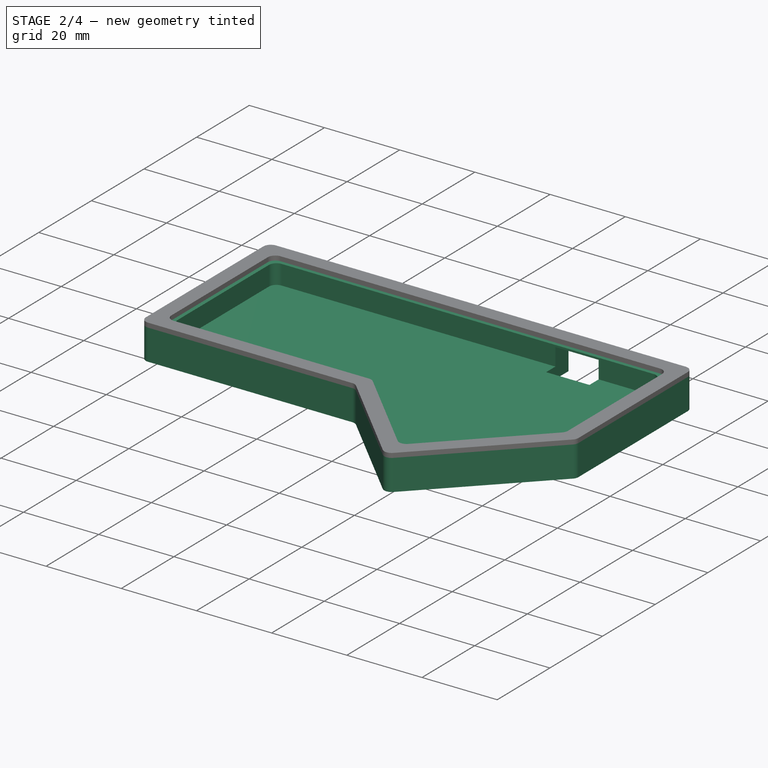
[diagram: stage 2 of 4 — iso view after this stage's code; geometry added in this stage tinted green]
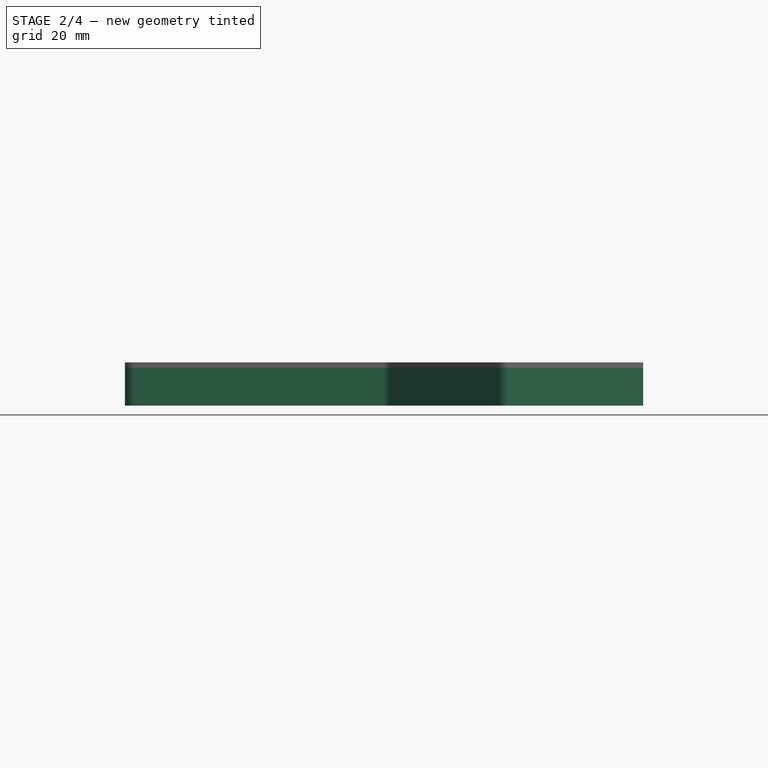
[diagram: stage 2 of 4 — front view after this stage's code; geometry added in this stage tinted green]
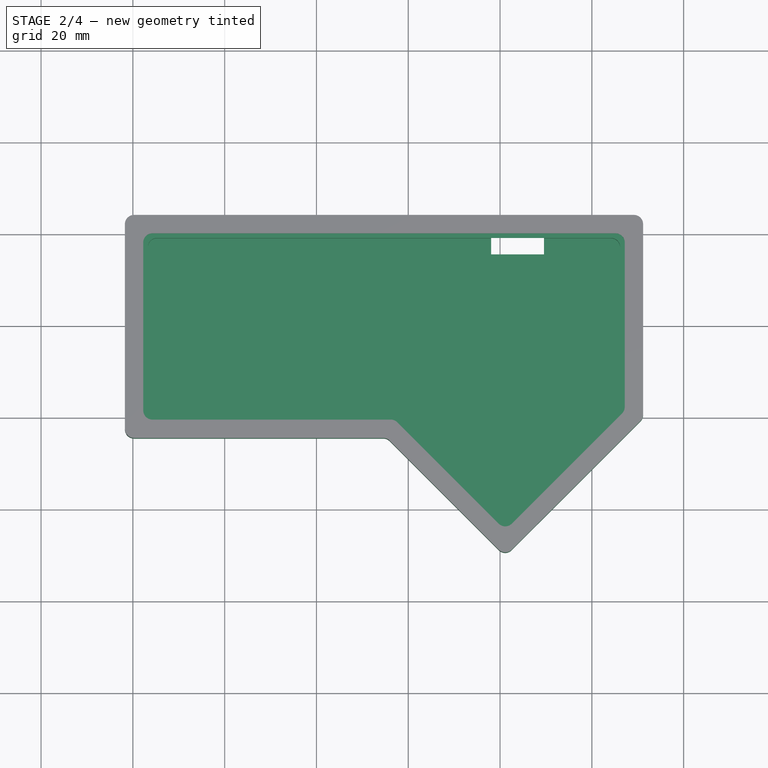
[diagram: stage 2 of 4 — top view after this stage's code; geometry added in this stage tinted green]
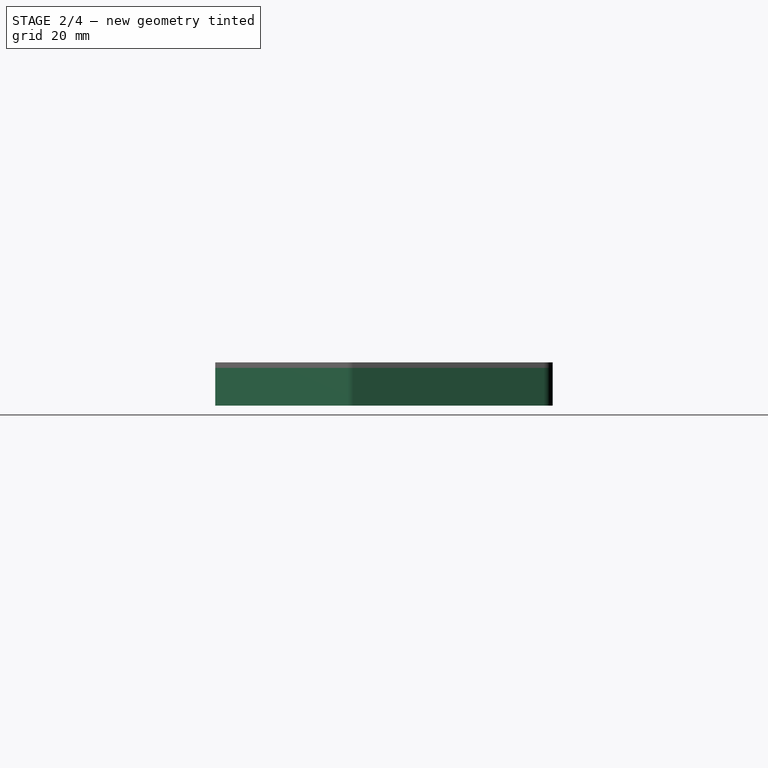
[diagram: stage 2 of 4 — right view after this stage's code; geometry added in this stage tinted green]
FEATURE [Sketcher::SketchObject] Sketch007
  ExternalGeometry = -> [Pad004]
  FullyConstrained = true
  MapMode = 5
  Placement = pos=(0,0,1) rot=(1,0,0;3.14159rad)
  Support = -> [Pad004]
  sketch-geometry (24):
    g0: LineSegment StartX=18.2631 StartY=62.4838 StartZ=0 EndX=18.2631 EndY=17.8838 EndZ=0
    g1: LineSegment StartX=20.2631 StartY=15.8838 StartZ=0 EndX=129.168 EndY=15.8838 EndZ=0
    g2: LineSegment StartX=131.168 StartY=17.8838 StartZ=0 EndX=131.168 EndY=59.3721 EndZ=0
    g3: LineSegment StartX=130.582 StartY=60.7863 StartZ=0 EndX=102.544 EndY=88.8243 EndZ=0
    g4: LineSegment StartX=99.7158 StartY=88.8243 StartZ=0 EndX=75.9611 EndY=65.0696 EndZ=0
    g5: LineSegment StartX=74.5468 StartY=64.4838 StartZ=0 EndX=20.2631 EndY=64.4838 EndZ=0
    g6: LineSegment StartX=23.2631 StartY=57.4838 StartZ=0 EndX=23.2631 EndY=22.8838 EndZ=0
    g7: LineSegment StartX=25.2631 StartY=20.8838 StartZ=0 EndX=124.168 EndY=20.8838 EndZ=0
    g8: LineSegment StartX=126.168 StartY=22.8838 StartZ=0 EndX=126.168 EndY=57.301 EndZ=0
    g9: LineSegment StartX=125.582 StartY=58.7153 StartZ=0 EndX=102.544 EndY=81.7532 EndZ=0
    g10: LineSegment StartX=99.7158 StartY=81.7532 StartZ=0 EndX=78.0321 EndY=60.0696 EndZ=0
    g11: LineSegment StartX=76.6179 StartY=59.4838 StartZ=0 EndX=25.2631 EndY=59.4838 EndZ=0
    g12: ArcOfCircle CenterX=25.2631 CenterY=57.4838 CenterZ=0 NormalX=0 NormalY=0 NormalZ=1 AngleXU=0 Radius=2 StartAngle=1.5708 EndAngle=3.14159
    g13: ArcOfCircle CenterX=20.2631 CenterY=62.4838 CenterZ=0 NormalX=0 NormalY=0 NormalZ=1 AngleXU=0 Radius=2 StartAngle=1.5708 EndAngle=3.14159
    g14: ArcOfCircle CenterX=25.2631 CenterY=22.8838 CenterZ=0 NormalX=0 NormalY=0 NormalZ=1 AngleXU=0 Radius=2 StartAngle=3.14159 EndAngle=4.71239
    g15: ArcOfCircle CenterX=20.2631 CenterY=17.8838 CenterZ=0 NormalX=0 NormalY=0 NormalZ=1 AngleXU=0 Radius=2 StartAngle=3.14159 EndAngle=4.71239
    g16: ArcOfCircle CenterX=129.168 CenterY=17.8838 CenterZ=0 NormalX=0 NormalY=0 NormalZ=1 AngleXU=0 Radius=2 StartAngle=4.71239 EndAngle=6.28319
    g17: ArcOfCircle CenterX=129.168 CenterY=59.3721 CenterZ=0 NormalX=0 NormalY=0 NormalZ=1 AngleXU=0 Radius=2 StartAngle=3e-16 EndAngle=0.785398
    g18: ArcOfCircle CenterX=101.13 CenterY=87.4101 CenterZ=0 NormalX=0 NormalY=0 NormalZ=1 AngleXU=0 Radius=2 StartAngle=0.785398 EndAngle=2.35619
    g19: ArcOfCircle CenterX=74.5468 CenterY=66.4838 CenterZ=0 NormalX=0 NormalY=0 NormalZ=1 AngleXU=0 Radius=2 StartAngle=4.71239 EndAngle=5.49779
    g20: ArcOfCircle CenterX=76.6179 CenterY=61.4838 CenterZ=0 NormalX=0 NormalY=0 NormalZ=1 AngleXU=0 Radius=2 StartAngle=4.71239 EndAngle=5.49779
    g21: ArcOfCircle CenterX=101.13 CenterY=80.339 CenterZ=0 NormalX=0 NormalY=0 NormalZ=1 AngleXU=0 Radius=2 StartAngle=0.785398 EndAngle=2.35619
    g22: ArcOfCircle CenterX=124.168 CenterY=57.301 CenterZ=0 NormalX=0 NormalY=0 NormalZ=1 AngleXU=0 Radius=2 StartAngle=7e-16 EndAngle=0.785398
    g23: ArcOfCircle CenterX=124.168 CenterY=22.8838 CenterZ=0 NormalX=0 NormalY=0 NormalZ=1 AngleXU=0 Radius=2 StartAngle=4.71239 EndAngle=6.28319
  constraints (53):
    c: Vertical(g0)
    c: Horizontal(g1)
    c: Vertical(g2)
    c: Horizontal(g5)
    c: Vertical(g6)
    c: Horizontal(g7)
    c: Horizontal(g11)
    c: Tangent(g6,g12) = -1.5708
    c: Tangent(g11,g12) = -1.5708
    c: Tangent(g0,g13) = -1.5708
    c: Tangent(g5,g13) = -1.5708
    c: Tangent(g6,g14) = -1.5708
    c: Tangent(g7,g14) = -1.5708
    c: Tangent(g0,g15) = -1.5708
    c: Tangent(g1,g15) = -1.5708
    c: Tangent(g1,g16) = -1.5708
    c: Tangent(g2,g16) = -1.5708
    c: Tangent(g2,g17) = -1.5708
    c: Tangent(g3,g17) = -1.5708
    c: Tangent(g3,g18) = -1.5708
    c: Tangent(g4,g18) = -1.5708
    c: Tangent(g4,g19) = 1.5708
    c: Tangent(g5,g19) = 1.5708
    c: Tangent(g10,g20) = 1.5708
    c: Tangent(g11,g20) = 1.5708
    c: Tangent(g9,g21) = -1.5708
    c: Tangent(g10,g21) = -1.5708
    c: Tangent(g8,g22) = -1.5708
    c: Tangent(g9,g22) = -1.5708
    c: Tangent(g7,g23) = -1.5708
    c: Tangent(g8,g23) = -1.5708
    c: Coincident(g5,g-3)
    c: Coincident(g-4,g0)
    c: Coincident(g1,g-5)
    c: Coincident(g2,g-6)
    c: Coincident(g3,g-7)
    c: Coincident(g3,g-7)
    c: Coincident(g4,g-8)
    c: Distance(g-9,g11) = 1
    c: Distance(g-10,g6) = 1
    c: Distance(g7,g-11) = 1
    c: Vertical(g8)
    c: Parallel(g3,g9)
    c: Parallel(g10,g4)
    c: Distance(g8,g-12) = 1
    c: Distance(g10,g-14) = 1
    c: Distance(g9,g-13) = 1
    c: Radius(g21) = 2
    c: Radius(g20) = 2
    c: Radius(g22) = 2
    c: Radius(g23) = 2
    c: Radius(g14) = 2
    c: Radius(g12) = 2
FEATURE [PartDesign::Pad] Pad005
  BaseFeature = -> Pad004
  Direction = (0,0,-1)
  Length = 5.2
  Length2 = 10
  Placement = pos=(0,0,2.2) rot=(0,0,1;0rad)
  Profile = -> Sketch007
  ReferenceAxis = -> Sketch007 [N_Axis]
  Type = 0
FEATURE [Sketcher::SketchObject] Sketch008
  ExternalGeometry = -> [Pad005]
  FullyConstrained = true
  MapMode = 5
  Placement = pos=(0,0,-4.2) rot=(1,0,0;3.14159rad)
  Support = -> [Pad005]
  sketch-geometry (12):
    g0: LineSegment StartX=18.2631 StartY=62.4838 StartZ=0 EndX=18.2631 EndY=17.8838 EndZ=0
    g1: LineSegment StartX=20.2631 StartY=15.8838 StartZ=0 EndX=129.168 EndY=15.8838 EndZ=0
    g2: LineSegment StartX=131.168 StartY=17.8838 StartZ=0 EndX=131.168 EndY=59.3721 EndZ=0
    g3: LineSegment StartX=130.582 StartY=60.7863 StartZ=0 EndX=102.544 EndY=88.8243 EndZ=0
    g4: LineSegment StartX=99.7158 StartY=88.8243 StartZ=0 EndX=75.9611 EndY=65.0696 EndZ=0
    g5: LineSegment StartX=74.5468 StartY=64.4838 StartZ=0 EndX=20.2631 EndY=64.4838 EndZ=0
    g6: ArcOfCircle CenterX=20.2631 CenterY=62.4838 CenterZ=0 NormalX=0 NormalY=0 NormalZ=1 AngleXU=0 Radius=2 StartAngle=1.5708 EndAngle=3.14159
    g7: ArcOfCircle CenterX=20.2631 CenterY=17.8838 CenterZ=0 NormalX=0 NormalY=0 NormalZ=1 AngleXU=0 Radius=2 StartAngle=3.14159 EndAngle=4.71239
    g8: ArcOfCircle CenterX=129.168 CenterY=17.8838 CenterZ=0 NormalX=0 NormalY=0 NormalZ=1 AngleXU=0 Radius=2 StartAngle=4.71239 EndAngle=6.28319
    g9: ArcOfCircle CenterX=129.168 CenterY=59.3721 CenterZ=0 NormalX=0 NormalY=0 NormalZ=1 AngleXU=0 Radius=2 StartAngle=-9e-16 EndAngle=0.785398
    g10: ArcOfCircle CenterX=101.13 CenterY=87.4101 CenterZ=0 NormalX=0 NormalY=0 NormalZ=1 AngleXU=0 Radius=2 StartAngle=0.785398 EndAngle=2.35619
    g11: ArcOfCircle CenterX=74.5468 CenterY=66.4838 CenterZ=0 NormalX=0 NormalY=0 NormalZ=1 AngleXU=0 Radius=2 StartAngle=4.71239 EndAngle=5.49779
  constraints (21):
    c: Tangent(g0,g6) = -1.5708
    c: Tangent(g5,g6) = -1.5708
    c: Tangent(g0,g7) = -1.5708
    c: Tangent(g1,g7) = -1.5708
    c: Tangent(g1,g8) = -1.5708
    c: Tangent(g2,g8) = -1.5708
    c: Tangent(g2,g9) = -1.5708
    c: Tangent(g3,g9) = -1.5708
    c: Tangent(g3,g10) = -1.5708
    c: Tangent(g4,g10) = -1.5708
    c: Tangent(g4,g11) = 1.5708
    c: Tangent(g5,g11) = 1.5708
    c: Coincident(g5,g-3)
    c: Coincident(g2,g-6)
    c: Coincident(g1,g-7)
    c: Coincident(g0,g-8)
    c: Coincident(g4,g-4)
    c: Coincident(g3,g-5)
    c: Coincident(g-4,g4)
    c: Coincident(g2,g-6)
    c: Coincident(g-8,g0)
FEATURE [PartDesign::Pad] Pad006
  BaseFeature = -> Pad005
  Direction = (0,0,-1)
  Length = 3
  Length2 = 10
  Placement = pos=(0,0,2.2) rot=(0,0,1;0rad)
  Profile = -> Sketch008
  ReferenceAxis = -> Sketch008 [N_Axis]
  Type = 0
FEATURE [PartDesign::ShapeBinder] ShapeBinder002
  Support = -> [Body]
  TraceSupport = false
FEATURE [Sketcher::SketchObject] Sketch009
  ExternalGeometry = -> [ShapeBinder002,Pad006]
  FullyConstrained = true
  MapMode = 5
  Placement = pos=(0,-15.8838,2.2) rot=(0,0.707107,0.707107;3.14159rad)
  Support = -> [Pad006]
  sketch-geometry (4):
    g0: LineSegment StartX=-109.563 StartY=-9.4 StartZ=0 EndX=-98.0631 EndY=-9.4 EndZ=0
    g1: LineSegment StartX=-98.0631 StartY=-9.4 StartZ=0 EndX=-98.0631 EndY=-1.7 EndZ=0
    g2: LineSegment StartX=-98.0631 StartY=-1.7 StartZ=0 EndX=-109.563 EndY=-1.7 EndZ=0
    g3: LineSegment StartX=-109.563 StartY=-1.7 StartZ=0 EndX=-109.563 EndY=-9.4 EndZ=0
  constraints (12):
    c: Coincident(g0,g1)
    c: Coincident(g1,g2)
    c: Coincident(g2,g3)
    c: Coincident(g3,g0)
    c: Horizontal(g0)
    c: Horizontal(g2)
    c: Vertical(g1)
    c: Vertical(g3)
    c: Distance(g-4,g2) = 0.5
    c: Distance(g-4,g3) = 0.5
    c: Distance(g-3,g1) = 0.5
    c: PointOnObject(g0,g-5)
FEATURE [PartDesign::Pocket] Pocket
  BaseFeature = -> Pad006
  Direction = (0,-1,2e-16)
  Length = 8.5
  Length2 = 5
  Placement = pos=(0,0,2.2) rot=(0,0,1;0rad)
  Profile = -> Sketch009
  ReferenceAxis = -> Sketch009 [N_Axis]
  Type = 0
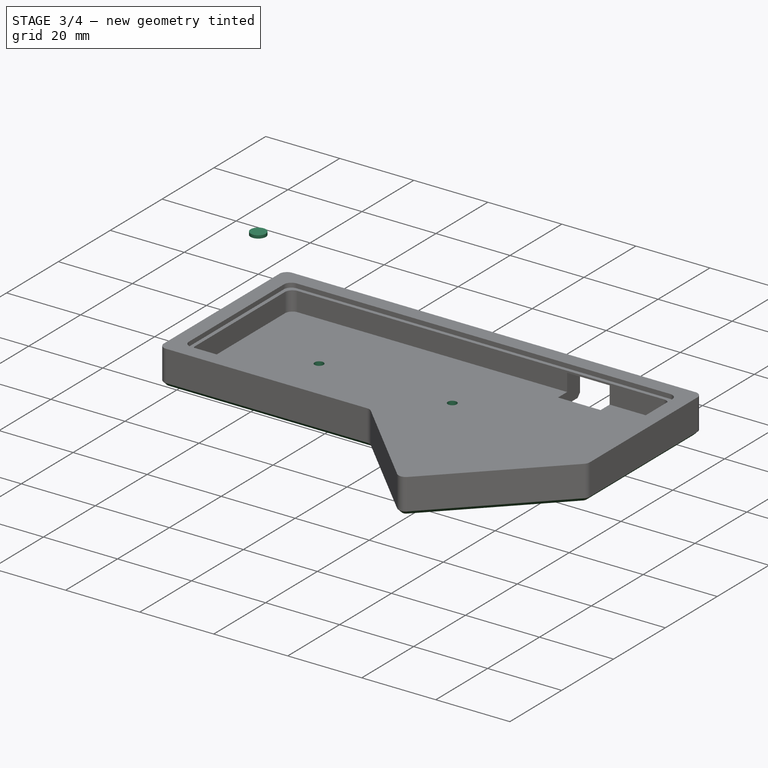
[diagram: stage 3 of 4 — iso view after this stage's code; geometry added in this stage tinted green]
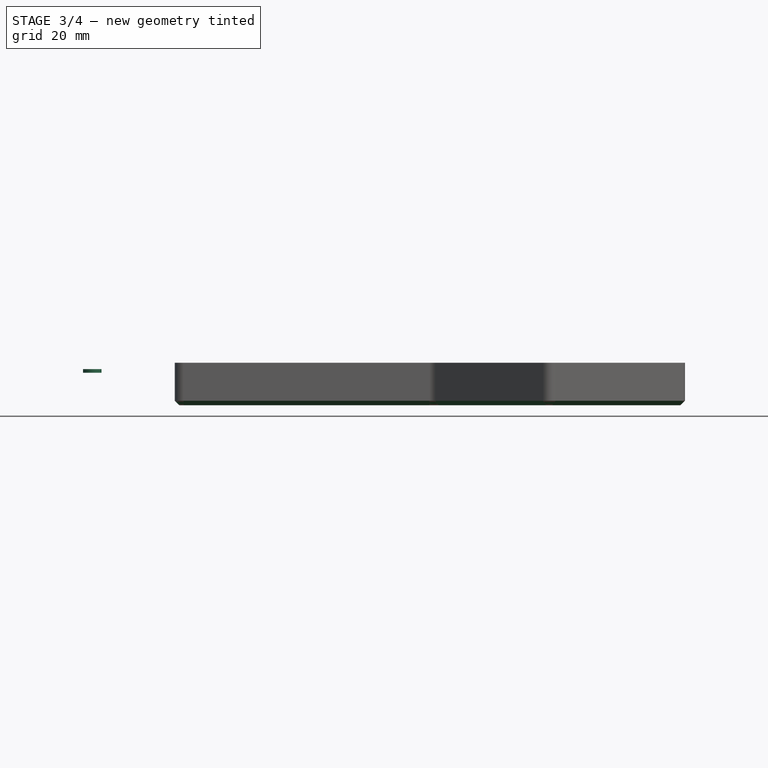
[diagram: stage 3 of 4 — front view after this stage's code; geometry added in this stage tinted green]
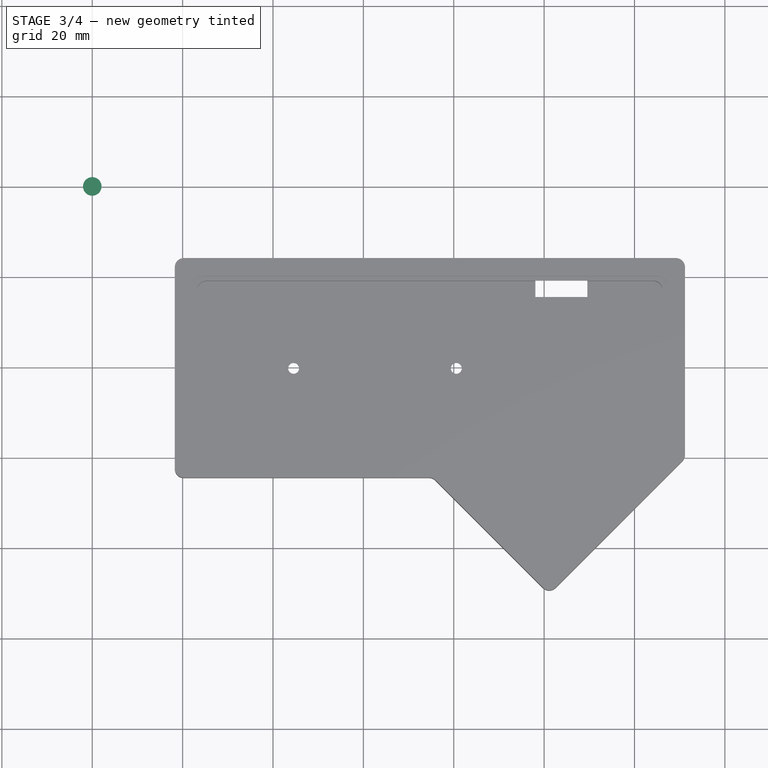
[diagram: stage 3 of 4 — top view after this stage's code; geometry added in this stage tinted green]
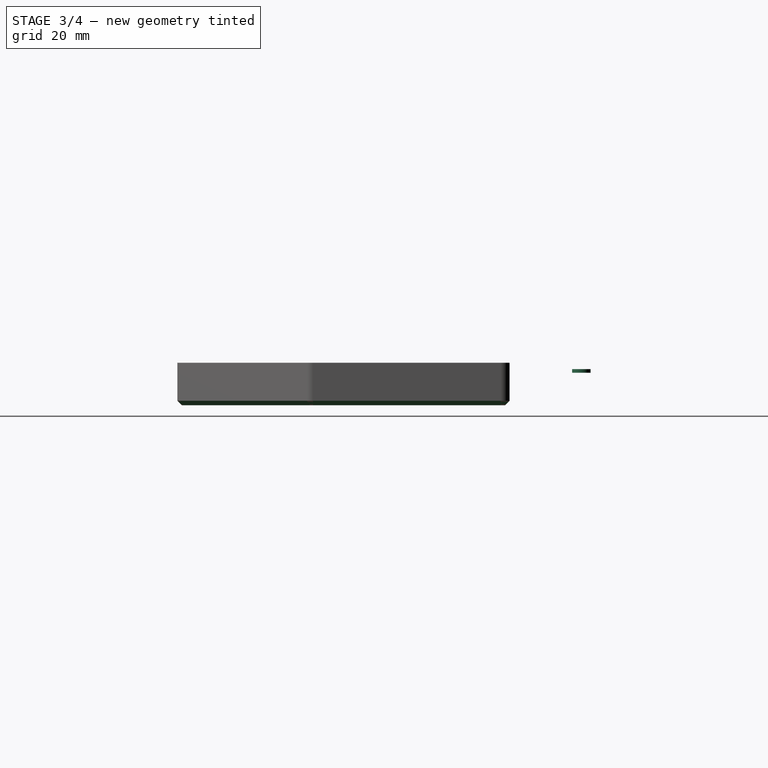
[diagram: stage 3 of 4 — right view after this stage's code; geometry added in this stage tinted green]
FEATURE [PartDesign::Chamfer] Chamfer
  Angle = 45
  Base = -> Pocket
  BaseFeature = -> Pocket
  ChamferType = 0
  FlipDirection = false
  Placement = pos=(0,0,2.2) rot=(0,0,1;0rad)
  Size = 1
  Size2 = 1
  SupportTransform = false
  UseAllEdges = false
FEATURE [PartDesign::Chamfer] Chamfer001
  Angle = 45
  Base = -> Chamfer [Edge43,Edge88,Edge80,Edge82,Edge84,Edge86]
  BaseFeature = -> Chamfer
  ChamferType = 0
  FlipDirection = false
  Placement = pos=(0,0,2.2) rot=(0,0,1;0rad)
  Size = 1
  Size2 = 1
  SupportTransform = false
  UseAllEdges = false
FEATURE [Sketcher::SketchObject] Sketch010
  FullyConstrained = true
  MapMode = 5
  Support = -> [XY_Plane008]
  sketch-geometry (1):
    g0: Circle CenterX=0 CenterY=0 CenterZ=0 NormalX=0 NormalY=0 NormalZ=1 AngleXU=0 Radius=2.05
  constraints (2):
    c: Radius(g0) = 2.05
    c: Coincident(g-1,g0)
FEATURE [PartDesign::Pad] Pad007
  Direction = (0,0,1)
  Length = 0.8
  Length2 = 10
  Profile = -> Sketch010
  ReferenceAxis = -> Sketch010 [N_Axis]
  Type = 0
FEATURE [PartDesign::Body] Body004  label="screw002"
  Group = -> [Sketch010,Pad007,Sketch011,Pad008]
  Origin = -> Origin008
  Placement = pos=(36,0,0) rot=(0,0,1;0rad)
  Tip = -> Pad008
FEATURE [App::Part] Part002  label="screw"
  Group = -> [Body001,Body004]
  Origin = -> Origin003
  Placement = pos=(44.6,-40.2,2.4) rot=(0,0,1;0rad)
FEATURE [App::MeasureDistance] Distance  label="Distance: 6.98 mm"
  Distance = 6.97782
  P1 = (69.0694,-58.1838,-1.2)
  P2 = (69.0694,-64.4838,-4.2)
FEATURE [App::MeasureDistance] Distance001  label="Distance: 25.71 mm"
  Distance = 25.7054
  P1 = (45.2448,-39.1962,2.2)
  P2 = (44.6793,-63.4838,-6.2)
FEATURE [Sketcher::SketchObject] Sketch012
  ExternalGeometry = -> [ShapeBinder001]
  FullyConstrained = true
  MapMode = 5
  Placement = pos=(0,0,-7.2) rot=(1,0,0;3.14159rad)
  Support = -> [Chamfer001]
  sketch-geometry (2):
    g0: Circle CenterX=44.5631 CenterY=40.1838 CenterZ=0 NormalX=0 NormalY=0 NormalZ=1 AngleXU=0 Radius=1.2
    g1: Circle CenterX=80.5631 CenterY=40.1838 CenterZ=0 NormalX=0 NormalY=0 NormalZ=1 AngleXU=0 Radius=1.2
  constraints (4):
    c: Radius(g0) = 1.2
    c: Radius(g1) = 1.2
    c: Coincident(g1,g-4)
    c: Coincident(g0,g-3)
FEATURE [PartDesign::Hole] Hole
  BaseFeature = -> Chamfer001
  CustomThreadClearance = 0
  Depth = 3
  DepthType = 0
  Diameter = 2.4
  DrillForDepth = false
  DrillPoint = 1
  DrillPointAngle = 118
  HoleCutCountersinkAngle = 90
  HoleCutCustomValues = false
  HoleCutDepth = 1.5
  HoleCutDiameter = 4.3
  HoleCutType = 1
  ModelThread = false
  Placement = pos=(0,0,2.2) rot=(0,0,1;0rad)
  Profile = -> Sketch012
  Tapered = false
  TaperedAngle = 90
  ThreadClass = 0
  ThreadDepth = 3
  ThreadDepthType = 0
  ThreadDirection = 0
  ThreadFit = 0
  ThreadSize = 6
  ThreadType = 1
  Threaded = false
  UseCustomThreadClearance = false
FEATURE [PartDesign::Body] Body003  label="Body"
  Group = -> [ShapeBinder001,DatumPlane001,Sketch006,Pad004,Sketch007,Pad005,Sketch008,Pad006,ShapeBinder002,Sketch009,Pocket,Chamfer,Chamfer001,Sketch012,Hole]
  Origin = -> Origin007
  Tip = -> Hole
FEATURE [App::Part] Part  label="body"
  Group = -> [Body,Body002,Body003]
  Origin = -> Origin001
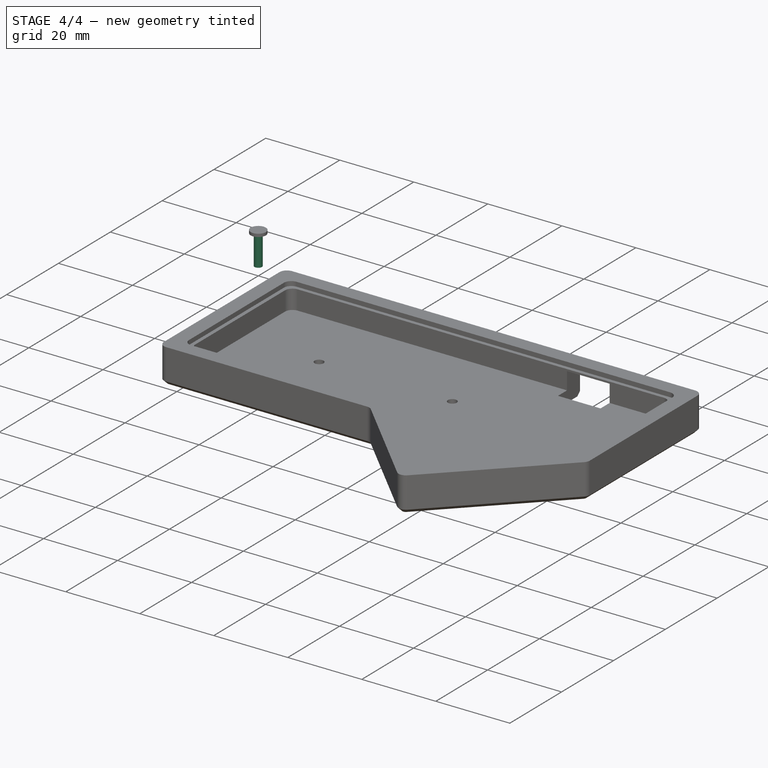
[diagram: stage 4 of 4 — iso view after this stage's code; geometry added in this stage tinted green]
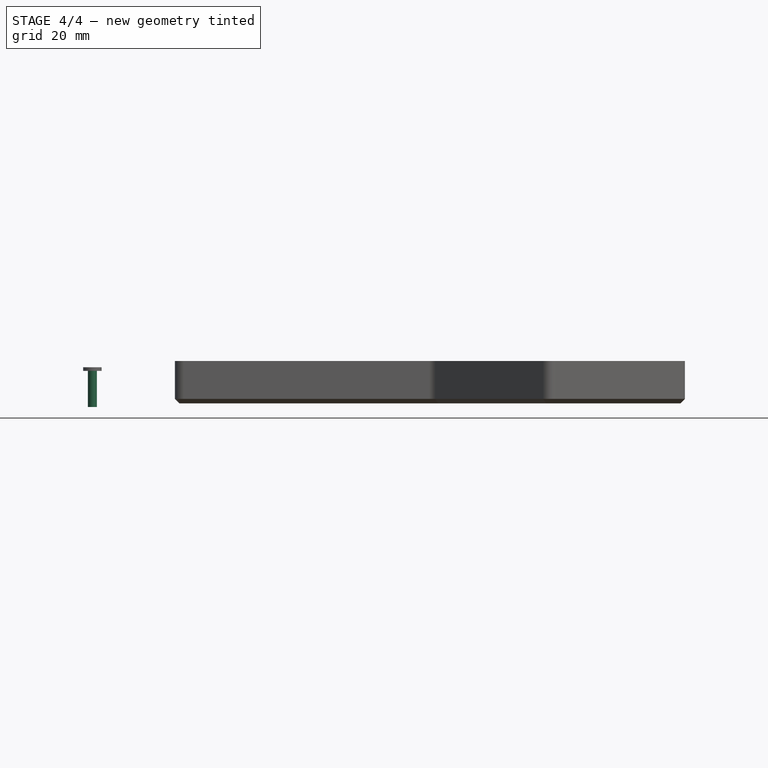
[diagram: stage 4 of 4 — front view after this stage's code; geometry added in this stage tinted green]
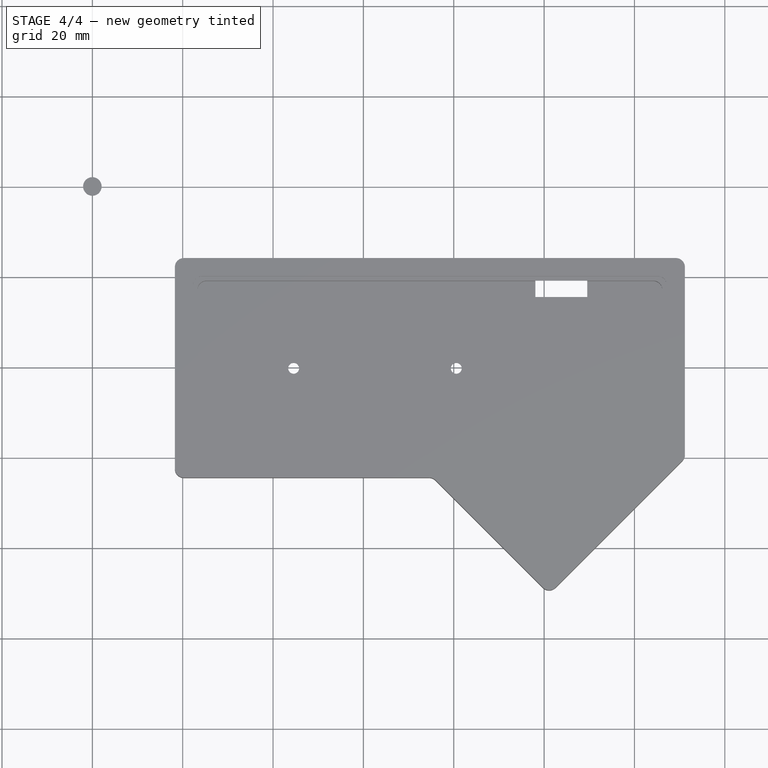
[diagram: stage 4 of 4 — top view after this stage's code; geometry added in this stage tinted green]
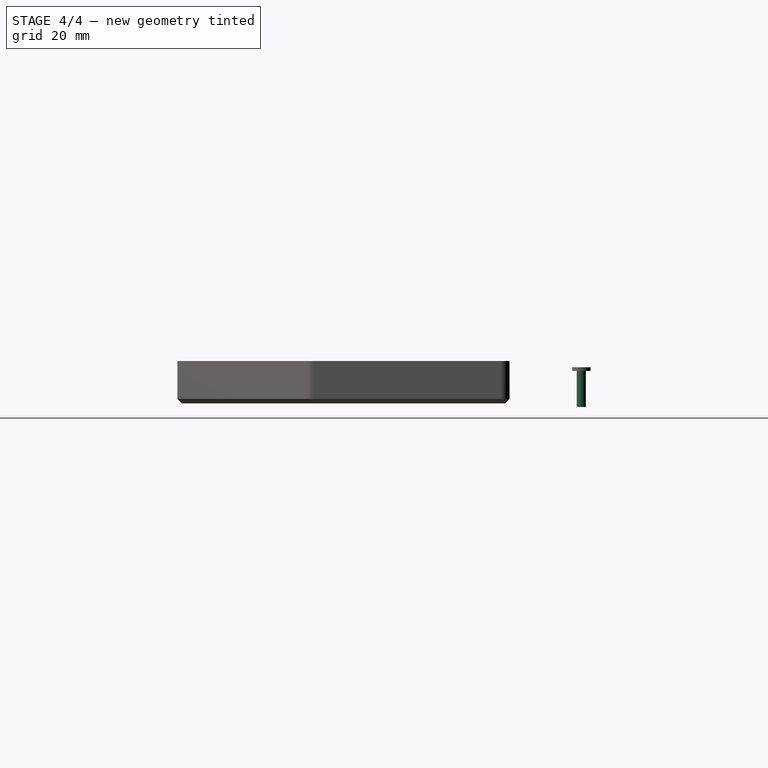
[diagram: stage 4 of 4 — right view after this stage's code; geometry added in this stage tinted green]
FEATURE [Part::Feature] Part__Feature  label="kailh_pg_1350 v1"
  Placement = pos=(35.6,-31.3,-1) rot=(0,0,1;3.14159rad)
  shape: bbox 15 x 15 x 10.93 mm, 112 faces (baked)
FEATURE [Part::Feature] Part__Feature001  label="kailh_pg_1350 v002"
  Placement = pos=(53.6,-31.3,-1) rot=(0,0,1;3.14159rad)
  shape: bbox 15 x 15 x 10.93 mm, 112 faces (baked)
FEATURE [Part::Feature] Part__Feature002  label="kailh_pg_1350 v003"
  Placement = pos=(71.6,-31.3,-1) rot=(0,0,1;3.14159rad)
  shape: bbox 15 x 15 x 10.93 mm, 112 faces (baked)
FEATURE [Part::Feature] Part__Feature003  label="kailh_pg_1350 v004"
  Placement = pos=(89.6,-31.3,-1) rot=(0,0,1;3.14159rad)
  shape: bbox 15 x 15 x 10.93 mm, 112 faces (baked)
FEATURE [Part::Feature] Part__Feature004  label="kailh_pg_1350 v005"
  Placement = pos=(53.6,-49.3,-1) rot=(0,0,1;3.14159rad)
  shape: bbox 15 x 15 x 10.93 mm, 112 faces (baked)
FEATURE [Part::Feature] Part__Feature005  label="kailh_pg_1350 v006"
  Placement = pos=(71.6,-49.3,-1) rot=(0,0,1;3.14159rad)
  shape: bbox 15 x 15 x 10.93 mm, 112 faces (baked)
FEATURE [Part::Feature] Part__Feature006  label="kailh_pg_1350 v007"
  Placement = pos=(89.6,-49.3,-1) rot=(0,0,1;3.14159rad)
  shape: bbox 15 x 15 x 10.93 mm, 112 faces (baked)
FEATURE [Part::Feature] Part__Feature007  label="kailh_pg_1350 v008"
  Placement = pos=(35.6,-49.3,-1) rot=(0,0,1;3.14159rad)
  shape: bbox 15 x 15 x 10.93 mm, 112 faces (baked)
FEATURE [Part::Feature] Part__Feature008  label="kailh_pg_1350 v009"
  Placement = pos=(104.449,-65.5635,-1) rot=(0,0,1;3.92699rad)
  shape: bbox 19.89 x 19.89 x 10.93 mm, 112 faces (baked)
FEATURE [Part::Feature] Part__Feature009  label="EC12E-085"
  Placement = pos=(116.58,-35.57,-1) rot=(0,0,1;3.14159rad)
  shape: bbox 14 x 14.32 x 11.95 mm, 500 faces (baked)
FEATURE [Sketcher::SketchObject] Sketch
  FullyConstrained = true
  MapMode = 5
  Support = -> [XY_Plane004]
  sketch-geometry (1):
    g0: Circle CenterX=0 CenterY=0 CenterZ=0 NormalX=0 NormalY=0 NormalZ=1 AngleXU=0 Radius=2.05
  constraints (2):
    c: Radius(g0) = 2.05
    c: Coincident(g-1,g0)
FEATURE [PartDesign::Pad] Pad001
  Direction = (0,0,1)
  Length = 0.8
  Length2 = 10
  Profile = -> Sketch
  ReferenceAxis = -> Sketch [N_Axis]
  Type = 0
FEATURE [Sketcher::SketchObject] Sketch002
  FullyConstrained = true
  MapMode = 5
  Placement = pos=(0,0,0) rot=(1,0,0;3.14159rad)
  Support = -> [Pad001]
  sketch-geometry (1):
    g0: Circle CenterX=0 CenterY=0 CenterZ=0 NormalX=0 NormalY=0 NormalZ=1 AngleXU=0 Radius=1
  constraints (2):
    c: Radius(g0) = 1
    c: Coincident(g0,g-1)
FEATURE [PartDesign::Pad] Pad002
  BaseFeature = -> Pad001
  Direction = (0,0,-1)
  Length = 8
  Length2 = 10
  Profile = -> Sketch002
  ReferenceAxis = -> Sketch002 [N_Axis]
  Type = 0
FEATURE [Sketcher::SketchObject] Sketch011
  FullyConstrained = true
  MapMode = 5
  Placement = pos=(0,0,0) rot=(1,0,0;3.14159rad)
  Support = -> [Pad007]
  sketch-geometry (1):
    g0: Circle CenterX=0 CenterY=0 CenterZ=0 NormalX=0 NormalY=0 NormalZ=1 AngleXU=0 Radius=1
  constraints (2):
    c: Radius(g0) = 1
    c: Coincident(g0,g-1)
FEATURE [PartDesign::Pad] Pad008
  BaseFeature = -> Pad007
  Direction = (0,0,-1)
  Length = 8
  Length2 = 10
  Profile = -> Sketch011
  ReferenceAxis = -> Sketch011 [N_Axis]
  Type = 0
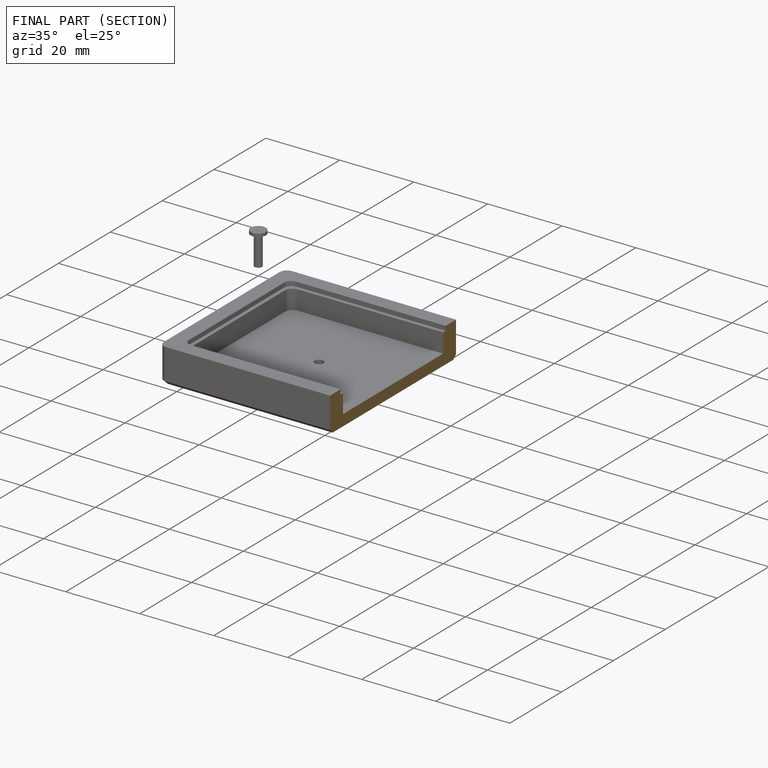
[diagram: finished part — half-section view (interior)]
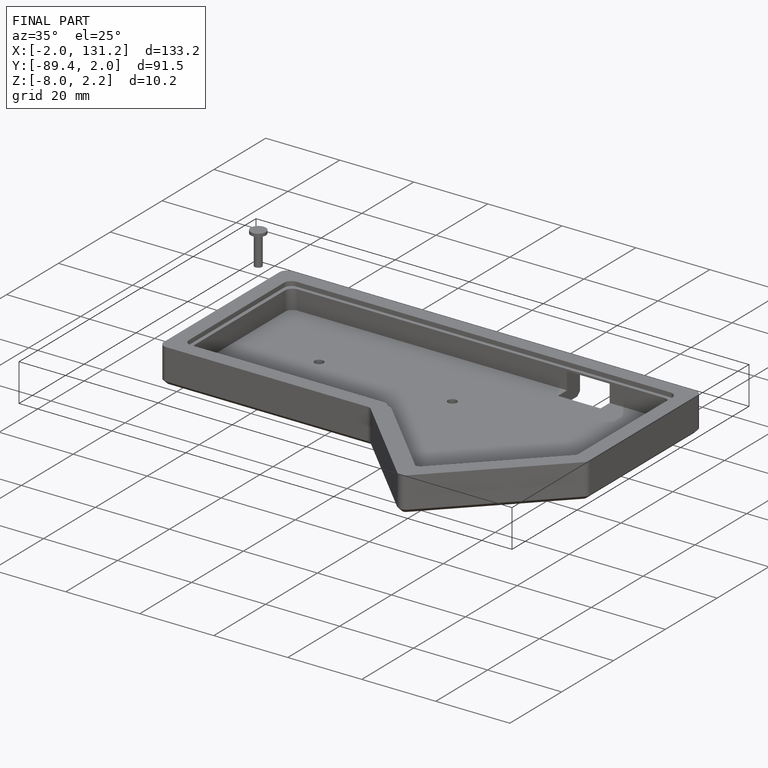
[diagram: finished part — iso view with bounding-box wireframe]
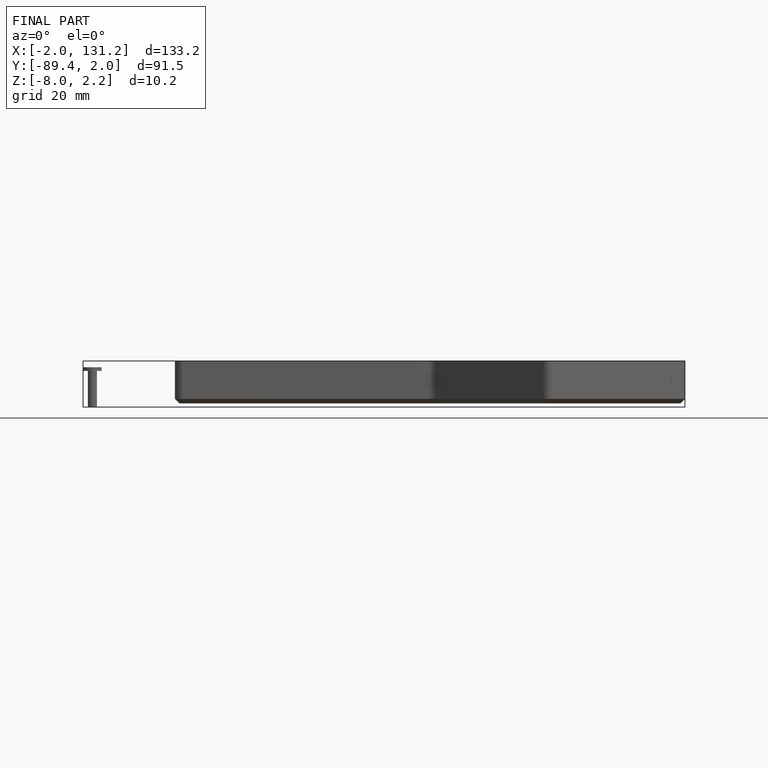
[diagram: finished part — front view with bounding-box wireframe]
